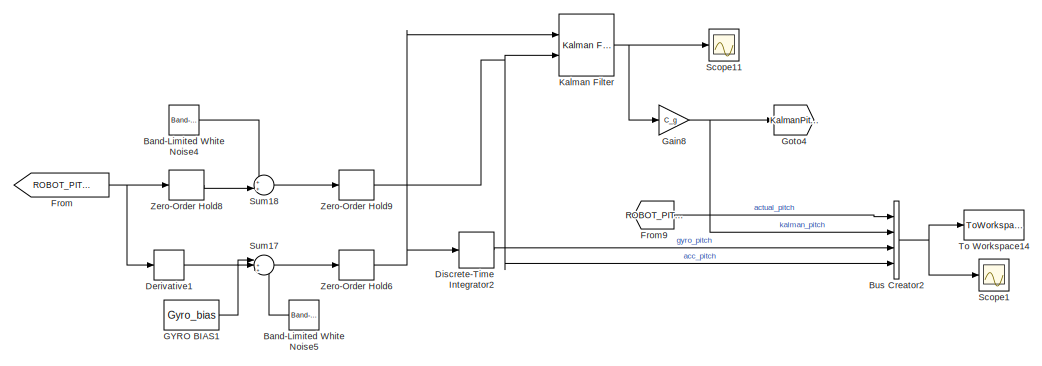
[diagram: root canvas - part 1/6, top right region]
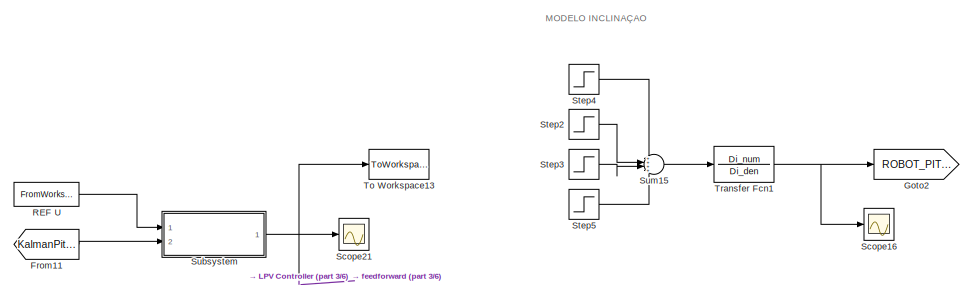
[diagram: root canvas - part 2/6, top center region]
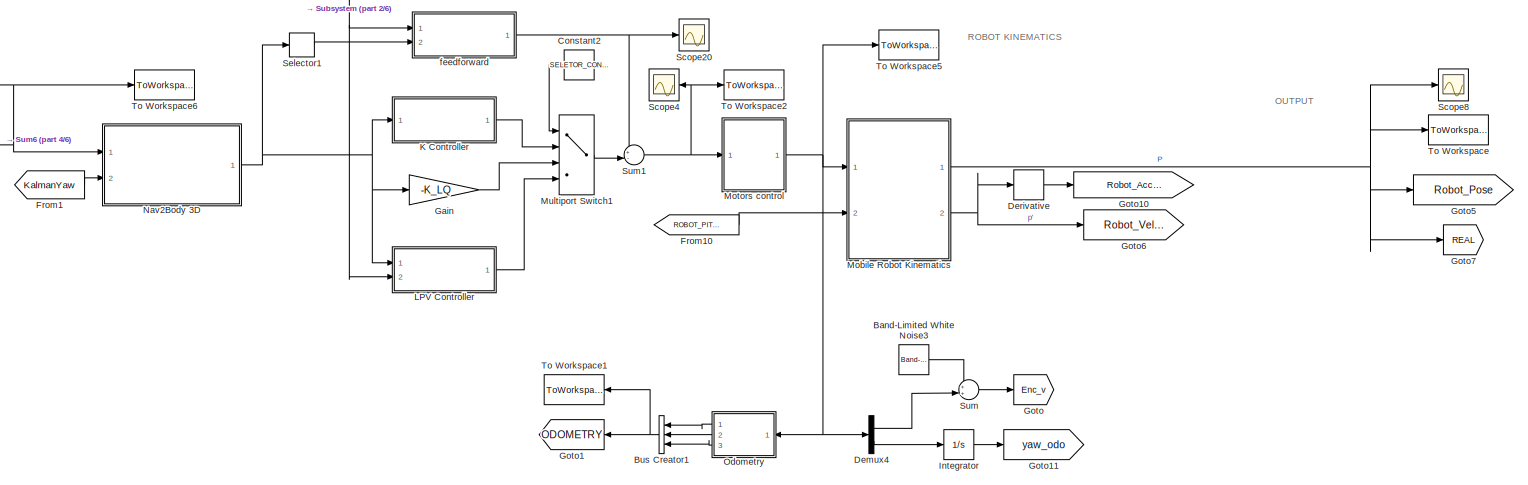
[diagram: root canvas - part 3/6, central region]
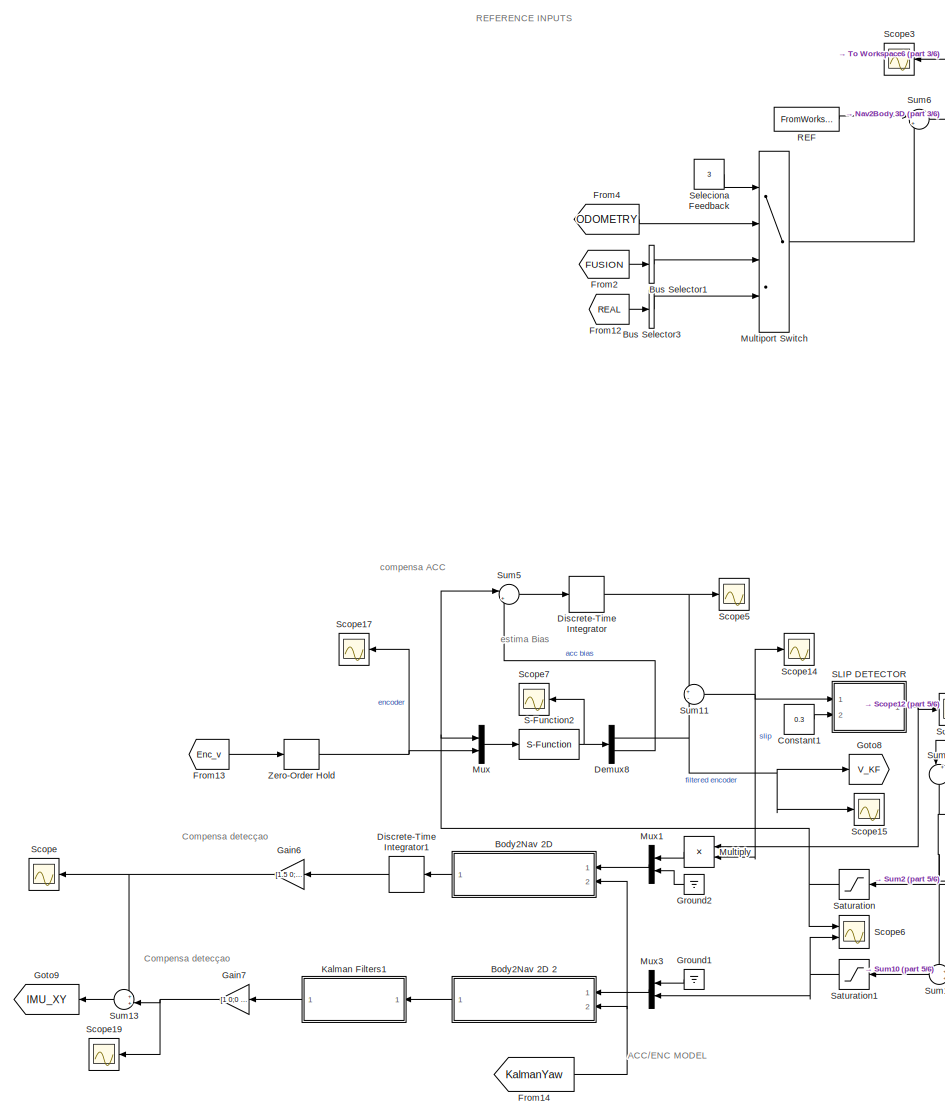
[diagram: root canvas - part 4/6, middle left region]
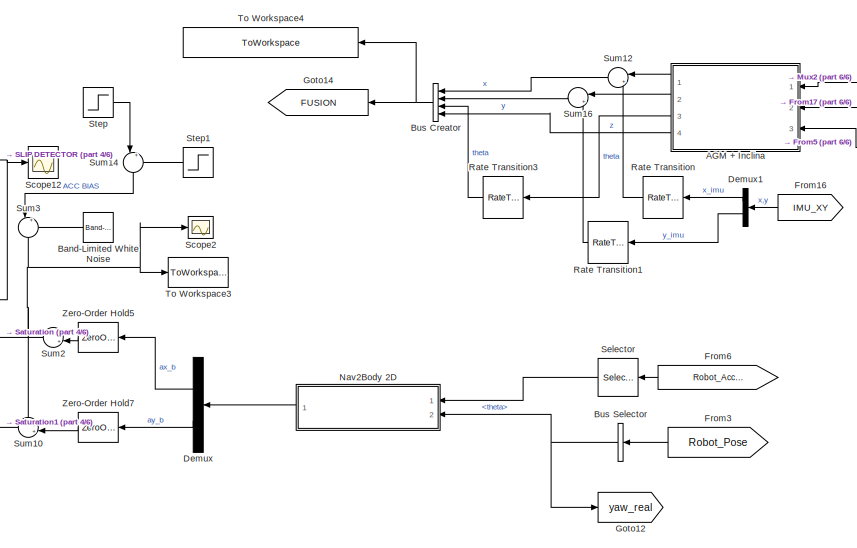
[diagram: root canvas - part 5/6, bottom center region]
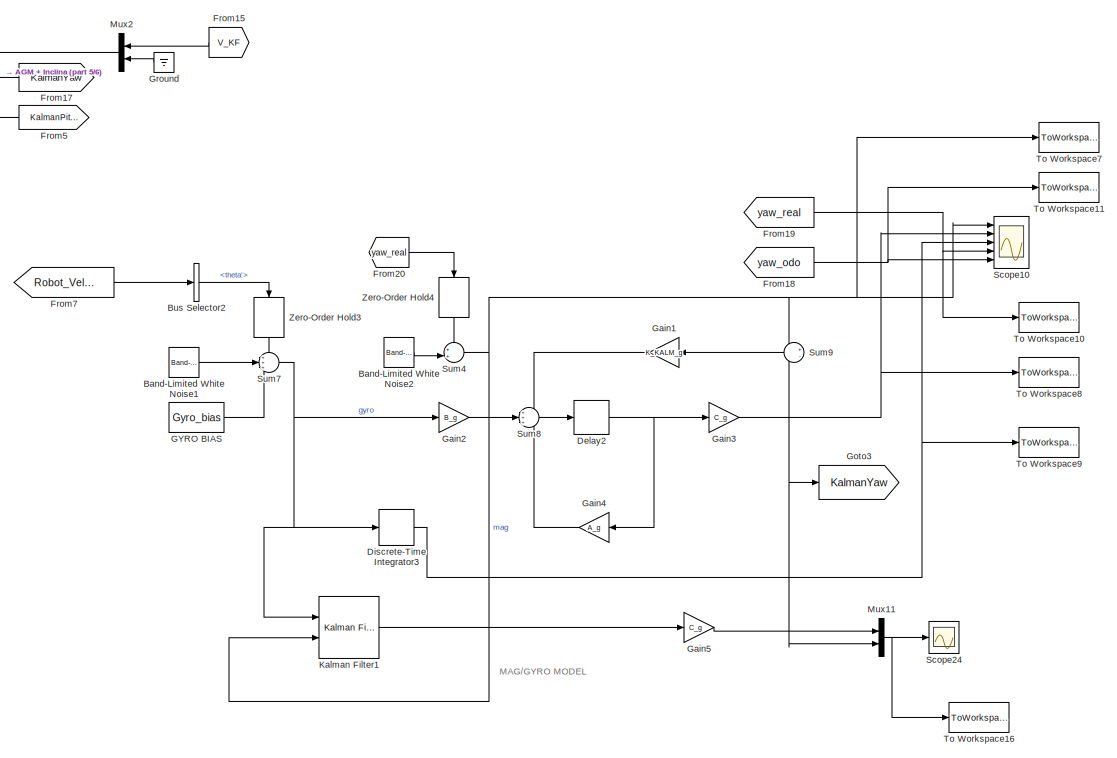
[diagram: root canvas - part 6/6, bottom right region]
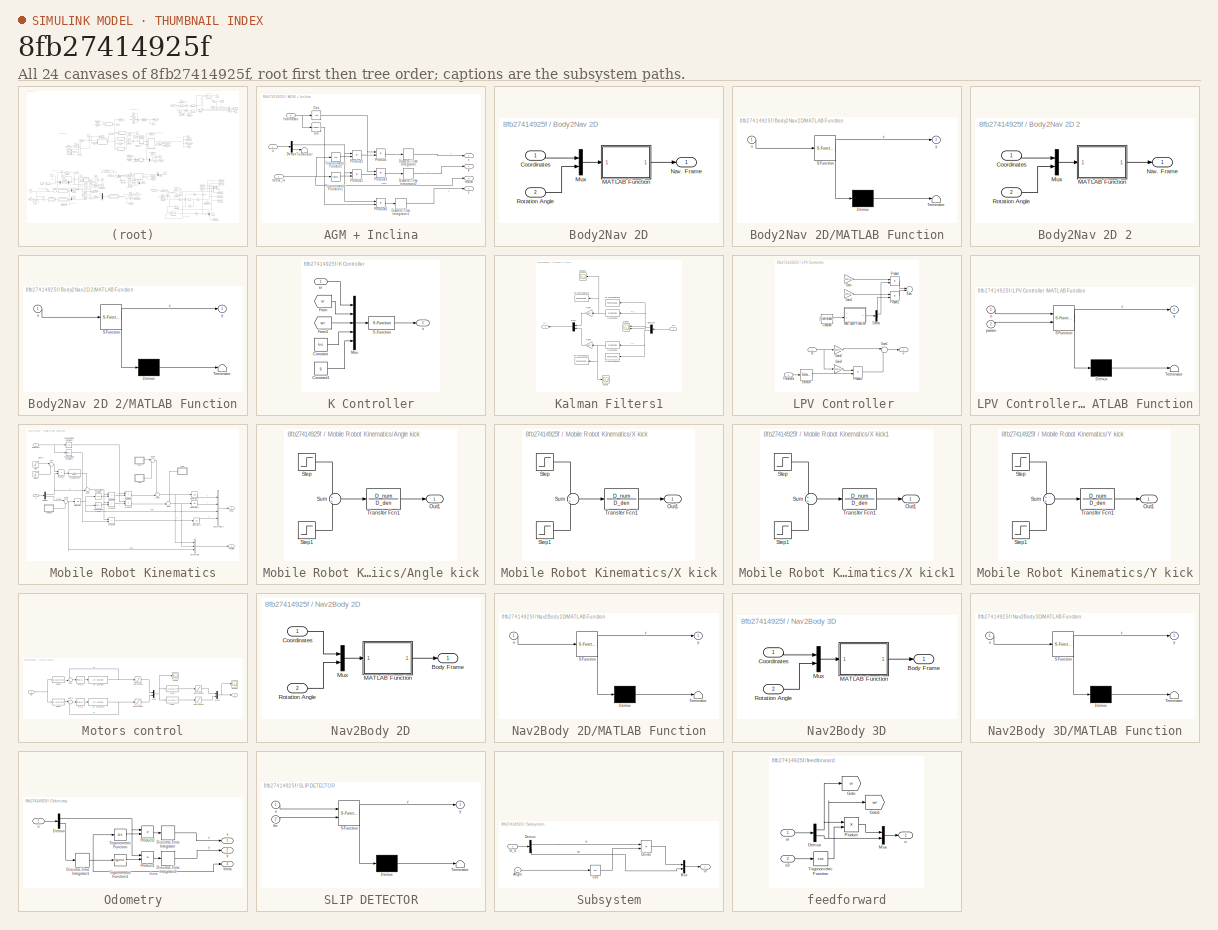
[diagram: thumbnail index - all 24 canvases of the model, root first then tree order]
MODEL slx_8fb27414925f
KIND model
CONFIG AbsTol = auto
CONFIG EnableMultiTasking = off
CONFIG FixedStep = Ts_compute
CONFIG MaxStep = auto
CONFIG MinStep = auto
CONFIG RelTol = 1e-3
CONFIG SampleTimeConstraint = Unconstrained
CONFIG Solver = ode45
CONFIG SolverName = ode45
CONFIG StartTime = 0.0
CONFIG StopTime = Tsim
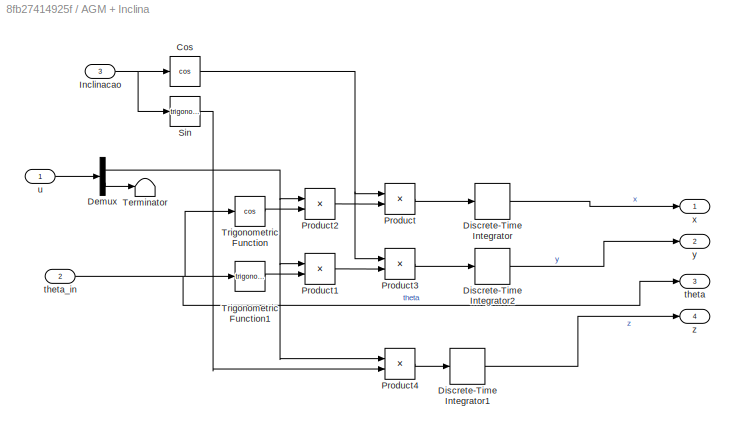
BLOCK [SubSystem] AGM + Inclina
  Ports = [3, 4]
  RequestExecContextInheritance = off
BLOCK [Trigonometry] AGM + Inclina/Cos
  Operator = cos
  Ports = [1, 1]
BLOCK [Demux] AGM + Inclina/Demux
  DisplayOption = bar
  Outputs = 2
  Ports = [1, 2]
BLOCK [DiscreteIntegrator] AGM + Inclina/Discrete-Time Integrator
  ICPrevOutput = DiscIntNeverNeededParam
  ICPrevScaledInput = DiscIntNeverNeededParam
  InitialConditionSetting = Auto
  Ports = [1, 1]
  SampleTime = Ts
BLOCK [DiscreteIntegrator] AGM + Inclina/Discrete-Time Integrator1
  ICPrevOutput = DiscIntNeverNeededParam
  ICPrevScaledInput = DiscIntNeverNeededParam
  InitialConditionSetting = Auto
  Ports = [1, 1]
  SampleTime = Ts
BLOCK [DiscreteIntegrator] AGM + Inclina/Discrete-Time Integrator2
  ICPrevOutput = DiscIntNeverNeededParam
  ICPrevScaledInput = DiscIntNeverNeededParam
  InitialConditionSetting = Auto
  Ports = [1, 1]
  SampleTime = Ts
BLOCK [Inport] AGM + Inclina/Inclinacao 
  IconDisplay = Port number
  Port = 3
BLOCK [Product] AGM + Inclina/Product
  InputSameDT = off
  OutDataTypeStr = Inherit: Inherit via internal rule
  Ports = [2, 1]
  RndMeth = Floor
  SaturateOnIntegerOverflow = off
BLOCK [Product] AGM + Inclina/Product1
  InputSameDT = off
  OutDataTypeStr = Inherit: Inherit via internal rule
  Ports = [2, 1]
  RndMeth = Floor
  SaturateOnIntegerOverflow = off
BLOCK [Product] AGM + Inclina/Product2
  InputSameDT = off
  OutDataTypeStr = Inherit: Inherit via internal rule
  Ports = [2, 1]
  RndMeth = Floor
  SaturateOnIntegerOverflow = off
BLOCK [Product] AGM + Inclina/Product3
  InputSameDT = off
  OutDataTypeStr = Inherit: Inherit via internal rule
  Ports = [2, 1]
  RndMeth = Floor
  SaturateOnIntegerOverflow = off
BLOCK [Product] AGM + Inclina/Product4
  InputSameDT = off
  OutDataTypeStr = Inherit: Inherit via internal rule
  Ports = [2, 1]
  RndMeth = Floor
  SaturateOnIntegerOverflow = off
BLOCK [Trigonometry] AGM + Inclina/Sin
  Ports = [1, 1]
BLOCK [Terminator] AGM + Inclina/Terminator
BLOCK [Trigonometry] AGM + Inclina/Trigonometric Function
  Operator = cos
  Ports = [1, 1]
BLOCK [Trigonometry] AGM + Inclina/Trigonometric Function1
  Ports = [1, 1]
BLOCK [Outport] AGM + Inclina/theta
  IconDisplay = Port number
  Port = 3
BLOCK [Inport] AGM + Inclina/theta_in
  IconDisplay = Port number
  Port = 2
BLOCK [Inport] AGM + Inclina/u
  IconDisplay = Port number
BLOCK [Outport] AGM + Inclina/x
  IconDisplay = Port number
BLOCK [Outport] AGM + Inclina/y
  IconDisplay = Port number
  Port = 2
BLOCK [Outport] AGM + Inclina/z
  IconDisplay = Port number
  Port = 4
BLOCK [Reference] Band-Limited White Noise  REF=simulink/Sources/Band-Limited
White Noise
  Ports = [0, 1]
  SourceBlock = simulink/Sources/Band-Limited\nWhite Noise
  SourceProductBaseCode = SL
  SourceProductName = Simulink
  SourceType = Band-Limited White Noise.
BLOCK [Reference] Band-Limited White Noise1  REF=simulink/Sources/Band-Limited
White Noise
  Ports = [0, 1]
  SourceBlock = simulink/Sources/Band-Limited\nWhite Noise
  SourceProductBaseCode = SL
  SourceProductName = Simulink
  SourceType = Band-Limited White Noise.
BLOCK [Reference] Band-Limited White Noise2  REF=simulink/Sources/Band-Limited
White Noise
  Ports = [0, 1]
  SourceBlock = simulink/Sources/Band-Limited\nWhite Noise
  SourceProductBaseCode = SL
  SourceProductName = Simulink
  SourceType = Band-Limited White Noise.
BLOCK [Reference] Band-Limited White Noise3  REF=simulink/Sources/Band-Limited
White Noise
  Ports = [0, 1]
  SourceBlock = simulink/Sources/Band-Limited\nWhite Noise
  SourceProductBaseCode = SL
  SourceProductName = Simulink
  SourceType = Band-Limited White Noise.
BLOCK [Reference] Band-Limited White Noise4  REF=simulink/Sources/Band-Limited
White Noise
  Ports = [0, 1]
  SourceBlock = simulink/Sources/Band-Limited\nWhite Noise
  SourceProductBaseCode = SL
  SourceProductName = Simulink
  SourceType = Band-Limited White Noise.
BLOCK [Reference] Band-Limited White Noise5  REF=simulink/Sources/Band-Limited
White Noise
  Ports = [0, 1]
  SourceBlock = simulink/Sources/Band-Limited\nWhite Noise
  SourceProductBaseCode = SL
  SourceProductName = Simulink
  SourceType = Band-Limited White Noise.
BLOCK [SubSystem] Body2Nav 2D
  Ports = [2, 1]
  RequestExecContextInheritance = off
BLOCK [SubSystem] Body2Nav 2D 2
  Ports = [2, 1]
  RequestExecContextInheritance = off
BLOCK [Inport] Body2Nav 2D 2/Coordinates
  IconDisplay = Port number
BLOCK [SubSystem] Body2Nav 2D 2/MATLAB Function
  ErrorFcn = Stateflow.Translate.translate
  PermitHierarchicalResolution = ExplicitOnly
  Ports = [1, 1]
  RequestExecContextInheritance = off
  SFBlockType = MATLAB Function
  TreatAsAtomicUnit = on
BLOCK [Demux] Body2Nav 2D 2/MATLAB Function/ Demux 
  Outputs = 1
  Ports = [1, 1]
BLOCK [S-Function] Body2Nav 2D 2/MATLAB Function/ SFunction 
  EnableBusSupport = on
  FunctionName = sf_sfun
  PortCounts = [1 2]
  Ports = [1, 2]
  SFcnIsStateOwnerBlock = off
  SFunctionDeploymentMode = off
  Tag = Stateflow S-Function Robot_Sim 6
BLOCK [Terminator] Body2Nav 2D 2/MATLAB Function/ Terminator 
BLOCK [Inport] Body2Nav 2D 2/MATLAB Function/u
  IconDisplay = Port number
BLOCK [Outport] Body2Nav 2D 2/MATLAB Function/y
  IconDisplay = Port number
BLOCK [Mux] Body2Nav 2D 2/Mux
  DisplayOption = bar
  Inputs = 2
  Ports = [2, 1]
BLOCK [Outport] Body2Nav 2D 2/Nav. Frame
  IconDisplay = Port number
BLOCK [Inport] Body2Nav 2D 2/Rotation Angle
  IconDisplay = Port number
  Port = 2
BLOCK [Inport] Body2Nav 2D/Coordinates
  IconDisplay = Port number
BLOCK [SubSystem] Body2Nav 2D/MATLAB Function
  ErrorFcn = Stateflow.Translate.translate
  PermitHierarchicalResolution = ExplicitOnly
  Ports = [1, 1]
  RequestExecContextInheritance = off
  SFBlockType = MATLAB Function
  TreatAsAtomicUnit = on
BLOCK [Demux] Body2Nav 2D/MATLAB Function/ Demux 
  Outputs = 1
  Ports = [1, 1]
BLOCK [S-Function] Body2Nav 2D/MATLAB Function/ SFunction 
  EnableBusSupport = on
  FunctionName = sf_sfun
  PortCounts = [1 2]
  Ports = [1, 2]
  SFcnIsStateOwnerBlock = off
  SFunctionDeploymentMode = off
  Tag = Stateflow S-Function Robot_Sim 4
BLOCK [Terminator] Body2Nav 2D/MATLAB Function/ Terminator 
BLOCK [Inport] Body2Nav 2D/MATLAB Function/u
  IconDisplay = Port number
BLOCK [Outport] Body2Nav 2D/MATLAB Function/y
  IconDisplay = Port number
BLOCK [Mux] Body2Nav 2D/Mux
  DisplayOption = bar
  Inputs = 2
  Ports = [2, 1]
BLOCK [Outport] Body2Nav 2D/Nav. Frame
  IconDisplay = Port number
BLOCK [Inport] Body2Nav 2D/Rotation Angle
  IconDisplay = Port number
  Port = 2
BLOCK [BusCreator] Bus Creator
  DisplayOption = bar
  InheritFromInputs = on
  Inputs = 4
  Ports = [4, 1]
BLOCK [BusCreator] Bus Creator1
  DisplayOption = bar
  InheritFromInputs = on
  Inputs = 3
  Ports = [3, 1]
BLOCK [BusCreator] Bus Creator2
  DisplayOption = bar
  InheritFromInputs = on
  Inputs = 4
  Ports = [4, 1]
BLOCK [BusSelector] Bus Selector
  OutputAsBus = off
  OutputSignals = theta
  Ports = [1, 1]
BLOCK [BusSelector] Bus Selector1
  OutputAsBus = on
  OutputSignals = x,y,theta
  Ports = [1, 1]
BLOCK [BusSelector] Bus Selector2
  OutputAsBus = off
  OutputSignals = theta'
  Ports = [1, 1]
BLOCK [BusSelector] Bus Selector3
  OutputAsBus = on
  OutputSignals = x,y,theta
  Ports = [1, 1]
BLOCK [Constant] Constant1
  Value = 0.3
BLOCK [Constant] Constant2
  Value = SELETOR_CONTROLADOR
BLOCK [Delay] Delay2
  DelayLength = 1
  InputPortMap = u0
  Ports = [1, 1]
BLOCK [Demux] Demux
  DisplayOption = bar
  Outputs = 2
  Ports = [1, 2]
BLOCK [Demux] Demux1
  DisplayOption = bar
  Outputs = 2
  Ports = [1, 2]
BLOCK [Demux] Demux4
  DisplayOption = bar
  Outputs = 2
  Ports = [1, 2]
BLOCK [Demux] Demux8
  DisplayOption = bar
  Outputs = 2
  Ports = [1, 2]
BLOCK [Derivative] Derivative
  CoefficientInTFapproximation = 1
BLOCK [Derivative] Derivative1
BLOCK [DiscreteIntegrator] Discrete-Time Integrator
  ICPrevOutput = DiscIntNeverNeededParam
  ICPrevScaledInput = DiscIntNeverNeededParam
  InitialConditionSetting = Auto
  IntegratorMethod = Integration: Backward Euler
  Ports = [1, 1]
  SampleTime = Ts_sensor
BLOCK [DiscreteIntegrator] Discrete-Time Integrator1
  ICPrevOutput = DiscIntNeverNeededParam
  ICPrevScaledInput = DiscIntNeverNeededParam
  InitialConditionSetting = Auto
  Ports = [1, 1]
  SampleTime = Ts_sensor
BLOCK [DiscreteIntegrator] Discrete-Time Integrator2
  ICPrevOutput = DiscIntNeverNeededParam
  ICPrevScaledInput = DiscIntNeverNeededParam
  InitialConditionSetting = Auto
  Ports = [1, 1]
  SampleTime = -1
BLOCK [DiscreteIntegrator] Discrete-Time Integrator3
  ICPrevOutput = DiscIntNeverNeededParam
  ICPrevScaledInput = DiscIntNeverNeededParam
  InitialConditionSetting = Auto
  Ports = [1, 1]
  SampleTime = -1
BLOCK [From] From
  GotoTag = ROBOT_PITCH
BLOCK [From] From1
  GotoTag = KalmanYaw
BLOCK [From] From10
  GotoTag = ROBOT_PITCH
BLOCK [From] From11
  GotoTag = KalmanPitch
BLOCK [From] From12
  GotoTag = REAL
BLOCK [From] From13
  GotoTag = Enc_v
BLOCK [From] From14
  GotoTag = KalmanYaw
BLOCK [From] From15
  GotoTag = V_KF
BLOCK [From] From16
  GotoTag = IMU_XY
BLOCK [From] From17
  GotoTag = KalmanYaw
BLOCK [From] From18
  GotoTag = yaw_odo
BLOCK [From] From19
  GotoTag = yaw_real
BLOCK [From] From2
  GotoTag = FUSION
BLOCK [From] From20
  GotoTag = yaw_real
BLOCK [From] From3
  GotoTag = Robot_Pose
BLOCK [From] From4
  GotoTag = ODOMETRY
BLOCK [From] From5
  GotoTag = KalmanPitch
BLOCK [From] From6
  GotoTag = Robot_Accelerations
BLOCK [From] From7
  GotoTag = Robot_Velocities
BLOCK [From] From9
  GotoTag = ROBOT_PITCH
BLOCK [Constant] GYRO BIAS
  Value = Gyro_bias
BLOCK [Constant] GYRO BIAS1
  Value = Gyro_bias
BLOCK [Gain] Gain
  Gain = -K_LQ
  Multiplication = Matrix(K*u)
  OutDataTypeStr = Inherit: Inherit via internal rule
  ParamDataTypeStr = Inherit: Inherit via internal rule
  SaturateOnIntegerOverflow = off
BLOCK [Gain] Gain1
  Gain = K_KALM_g
  Multiplication = Matrix(K*u)
  OutDataTypeStr = Inherit: Inherit via internal rule
  ParamDataTypeStr = Inherit: Inherit via internal rule
  SaturateOnIntegerOverflow = off
BLOCK [Gain] Gain2
  Gain = B_g
  Multiplication = Matrix(K*u)
  OutDataTypeStr = Inherit: Inherit via internal rule
  ParamDataTypeStr = Inherit: Inherit via internal rule
  SaturateOnIntegerOverflow = off
BLOCK [Gain] Gain3
  Gain = C_g
  Multiplication = Matrix(K*u)
  OutDataTypeStr = Inherit: Inherit via internal rule
  ParamDataTypeStr = Inherit: Inherit via internal rule
  SaturateOnIntegerOverflow = off
BLOCK [Gain] Gain4
  Gain = A_g
  Multiplication = Matrix(K*u)
  OutDataTypeStr = Inherit: Inherit via internal rule
  ParamDataTypeStr = Inherit: Inherit via internal rule
  SaturateOnIntegerOverflow = off
BLOCK [Gain] Gain5
  Gain = C_g
  Multiplication = Matrix(K*u)
  OutDataTypeStr = Inherit: Inherit via internal rule
  ParamDataTypeStr = Inherit: Inherit via internal rule
  SaturateOnIntegerOverflow = off
BLOCK [Gain] Gain6
  Gain = [1.5 0;0 1.5]
  Multiplication = Matrix(K*u)
  OutDataTypeStr = Inherit: Inherit via internal rule
  ParamDataTypeStr = Inherit: Inherit via internal rule
  SaturateOnIntegerOverflow = off
BLOCK [Gain] Gain7
  Gain = [1 0;0 1]
  Multiplication = Matrix(K*u)
  OutDataTypeStr = Inherit: Inherit via internal rule
  ParamDataTypeStr = Inherit: Inherit via internal rule
  SaturateOnIntegerOverflow = off
BLOCK [Gain] Gain8
  Gain = C_g
  Multiplication = Matrix(K*u)
  OutDataTypeStr = Inherit: Inherit via internal rule
  ParamDataTypeStr = Inherit: Inherit via internal rule
  SaturateOnIntegerOverflow = off
BLOCK [Goto] Goto
  GotoTag = Enc_v
BLOCK [Goto] Goto1
  GotoTag = ODOMETRY
BLOCK [Goto] Goto10
  GotoTag = Robot_Accelerations
BLOCK [Goto] Goto11
  GotoTag = yaw_odo
BLOCK [Goto] Goto12
  GotoTag = yaw_real
BLOCK [Goto] Goto14
  GotoTag = FUSION
BLOCK [Goto] Goto2
  GotoTag = ROBOT_PITCH
BLOCK [Goto] Goto3
  GotoTag = KalmanYaw
BLOCK [Goto] Goto4
  GotoTag = KalmanPitch
BLOCK [Goto] Goto5
  GotoTag = Robot_Pose
BLOCK [Goto] Goto6
  GotoTag = Robot_Velocities
BLOCK [Goto] Goto7
  GotoTag = REAL
BLOCK [Goto] Goto8
  GotoTag = V_KF
BLOCK [Goto] Goto9
  GotoTag = IMU_XY
BLOCK [Ground] Ground
BLOCK [Ground] Ground1
BLOCK [Ground] Ground2
BLOCK [Integrator] Integrator
  Ports = [1, 1]
BLOCK [SubSystem] K Controller
  Ports = [1, 1]
  RequestExecContextInheritance = off
BLOCK [Constant] K Controller/Constant
  Value = ksi
BLOCK [Constant] K Controller/Constant1
  Value = g
BLOCK [From] K Controller/From
  GotoTag = vr
  TagVisibility = global
BLOCK [From] K Controller/From1
  GotoTag = wr
  TagVisibility = global
BLOCK [Mux] K Controller/Mux
  DisplayOption = bar
  Inputs = 5
  Ports = [5, 1]
BLOCK [S-Function] K Controller/S-Function
  EnableBusSupport = off
  FunctionName = ControllerK
  Parameters = Ts
  Ports = [1, 1]
  SFcnIsStateOwnerBlock = off
  SFunctionDeploymentMode = off
BLOCK [Inport] K Controller/er
  IconDisplay = Port number
BLOCK [Outport] K Controller/v
  IconDisplay = Port number
BLOCK [Reference] Kalman Filter  REF=ctrlSharedLib/Kalman Filter
  Ports = [2, 1]
  SourceBlock = ctrlSharedLib/Kalman Filter
  SourceProductBaseCode = CT
  SourceProductName = Control System Toolbox
  SourceType = ctrlKalmanFilter
BLOCK [Reference] Kalman Filter1  REF=ctrlSharedLib/Kalman Filter
  Ports = [2, 1]
  SourceBlock = ctrlSharedLib/Kalman Filter
  SourceProductBaseCode = CT
  SourceProductName = Control System Toolbox
  SourceType = ctrlKalmanFilter
BLOCK [SubSystem] Kalman Filters1
  Ports = [1, 1]
  RequestExecContextInheritance = off
BLOCK [Inport] Kalman Filters1/Acc
  IconDisplay = Port number
BLOCK [Demux] Kalman Filters1/Demux8
  DisplayOption = bar
  Outputs = 2
  Ports = [1, 2]
BLOCK [Gain] Kalman Filters1/Gain6
  Gain = [1 0 0]
  Multiplication = Matrix(K*u)
  OutDataTypeStr = Inherit: Inherit via internal rule
  ParamDataTypeStr = Inherit: Inherit via internal rule
  SaturateOnIntegerOverflow = off
BLOCK [Gain] Kalman Filters1/Gain7
  Gain = [1 0 0]
  Multiplication = Matrix(K*u)
  OutDataTypeStr = Inherit: Inherit via internal rule
  ParamDataTypeStr = Inherit: Inherit via internal rule
  SaturateOnIntegerOverflow = off
BLOCK [Mux] Kalman Filters1/Mux1
  DisplayOption = bar
  Inputs = 2
  Ports = [2, 1]
BLOCK [S-Function] Kalman Filters1/S-Function1
  EnableBusSupport = off
  FunctionName = modKalman2
  Parameters = Ts_sensor,A_y,C_y,Rw_y,Rv_y,discriminator,buffer_size
  Ports = [1, 1]
  SFcnIsStateOwnerBlock = off
  SFunctionDeploymentMode = off
BLOCK [S-Function] Kalman Filters1/S-Function2
  EnableBusSupport = off
  FunctionName = modKalman
  Parameters = Ts_sensor,A_y,C_y,Rw_y,Rv_y,discriminator,buffer_size
  Ports = [1, 1]
  SFcnIsStateOwnerBlock = off
  SFunctionDeploymentMode = off
BLOCK [Scope] Kalman Filters1/Scope
  Floating = off
  NumInputPorts = 1
  Ports = [1]
  ScopeSpecificationString = Simulink.scopes.TimeScopeBlockCfg('CurrentConfiguration', extmgr.ConfigurationSet(extmgr.Configuration('Core','General UI',true,'FigureColor',[0.156862745098039 0.156862745098039 0.156862745098039]),extmgr.Configuration('Core','Source UI',true),extmgr.Configuration('Sources','WiredSimulink',true,'DataLoggingVariableName','ScopeData1','DataLoggingSaveFormat','StructureWithTime','DataLoggingDecimati...<+2842ch>
BLOCK [Scope] Kalman Filters1/Scope1
  Floating = off
  NumInputPorts = 2
  Ports = [2]
  ScopeSpecificationString = Simulink.scopes.TimeScopeBlockCfg('CurrentConfiguration', extmgr.ConfigurationSet(extmgr.Configuration('Core','General UI',true),extmgr.Configuration('Core','Source UI',true),extmgr.Configuration('Sources','WiredSimulink',true,'DataLoggingVariableName','ScopeData5'),extmgr.Configuration('Visuals','Time Domain',true,'SerializedDisplays',{struct('MinYLimReal','-48.99996','MaxYLimReal','48.99997','YL...<+1491ch>
BLOCK [Scope] Kalman Filters1/Scope12
  Floating = off
  NumInputPorts = 1
  Ports = [1]
  ScopeSpecificationString = Simulink.scopes.TimeScopeBlockCfg('CurrentConfiguration', extmgr.ConfigurationSet(extmgr.Configuration('Core','General UI',true,'FigureColor',[0.156862745098039 0.156862745098039 0.156862745098039]),extmgr.Configuration('Core','Source UI',true),extmgr.Configuration('Sources','WiredSimulink',true,'DataLoggingVariableName','ScopeData2','DataLoggingSaveFormat','StructureWithTime','DataLoggingDecimati...<+2840ch>
BLOCK [ToWorkspace] Kalman Filters1/To Workspace12
  FixptAsFi = on
  MaxDataPoints = inf
  Ports = [1]
  SampleTime = -1
  Save2DSignal = 3-D array (concatenate along third dimension)
  SaveFormat = Timeseries
  VariableName = acc_data_x
BLOCK [ToWorkspace] Kalman Filters1/To Workspace13
  FixptAsFi = on
  MaxDataPoints = inf
  Ports = [1]
  SampleTime = -1
  Save2DSignal = 3-D array (concatenate along third dimension)
  SaveFormat = Timeseries
  VariableName = acc_kalman_x
BLOCK [ToWorkspace] Kalman Filters1/To Workspace14
  FixptAsFi = on
  MaxDataPoints = inf
  Ports = [1]
  SampleTime = -1
  Save2DSignal = 3-D array (concatenate along third dimension)
  SaveFormat = Timeseries
  VariableName = acc_data_y
BLOCK [ToWorkspace] Kalman Filters1/To Workspace15
  FixptAsFi = on
  MaxDataPoints = inf
  Ports = [1]
  SampleTime = -1
  Save2DSignal = 3-D array (concatenate along third dimension)
  SaveFormat = Timeseries
  VariableName = acc_kalman_y
BLOCK [Outport] Kalman Filters1/X,Y
  IconDisplay = Port number
BLOCK [SubSystem] LPV Controller 
  Ports = [2, 1]
  RequestExecContextInheritance = off
BLOCK [Constant] LPV Controller /Constant
  Commented = on
  Value = [Controlador_LPV.Vmax Controlador_LPV.Vmin]
BLOCK [Demux] LPV Controller /Demux
  Commented = on
  DisplayOption = bar
  Outputs = 2
  Ports = [1, 2]
BLOCK [Gain] LPV Controller /Gain
  Commented = on
  Gain = -Controlador_LPV.K1
  Multiplication = Matrix(K*u)
  OutDataTypeStr = Inherit: Inherit via internal rule
  ParamDataTypeStr = Inherit: Inherit via internal rule
  SaturateOnIntegerOverflow = off
BLOCK [Gain] LPV Controller /Gain1
  Commented = on
  Gain = -Controlador_LPV.K2
  Multiplication = Matrix(K*u)
  OutDataTypeStr = Inherit: Inherit via internal rule
  ParamDataTypeStr = Inherit: Inherit via internal rule
  SaturateOnIntegerOverflow = off
BLOCK [Gain] LPV Controller /Gain2
  Gain = -Controlador_LPV.K0
  Multiplication = Matrix(K*u)
  OutDataTypeStr = Inherit: Inherit via internal rule
  ParamDataTypeStr = Inherit: Inherit via internal rule
  SaturateOnIntegerOverflow = off
BLOCK [Gain] LPV Controller /Gain3
  Gain = -Controlador_LPV.K1
  Multiplication = Matrix(K*u)
  OutDataTypeStr = Inherit: Inherit via internal rule
  ParamDataTypeStr = Inherit: Inherit via internal rule
  SaturateOnIntegerOverflow = off
BLOCK [SubSystem] LPV Controller /MATLAB Function
  Commented = on
  ErrorFcn = Stateflow.Translate.translate
  PermitHierarchicalResolution = ExplicitOnly
  Ports = [2, 1]
  RequestExecContextInheritance = off
  SFBlockType = MATLAB Function
  TreatAsAtomicUnit = on
BLOCK [Demux] LPV Controller /MATLAB Function/ Demux 
  Outputs = 1
  Ports = [1, 1]
BLOCK [S-Function] LPV Controller /MATLAB Function/ SFunction 
  EnableBusSupport = on
  FunctionName = sf_sfun
  PortCounts = [2 2]
  Ports = [2, 2]
  SFcnIsStateOwnerBlock = off
  SFunctionDeploymentMode = off
  Tag = Stateflow S-Function Robot_Sim 5
BLOCK [Terminator] LPV Controller /MATLAB Function/ Terminator 
BLOCK [Inport] LPV Controller /MATLAB Function/param
  IconDisplay = Port number
  Port = 2
BLOCK [Inport] LPV Controller /MATLAB Function/u
  IconDisplay = Port number
BLOCK [Outport] LPV Controller /MATLAB Function/y
  IconDisplay = Port number
BLOCK [Inport] LPV Controller /Parameter
  IconDisplay = Port number
  Port = 2
BLOCK [Product] LPV Controller /Product
  Commented = on
  InputSameDT = off
  OutDataTypeStr = Inherit: Inherit via internal rule
  Ports = [2, 1]
  RndMeth = Floor
  SaturateOnIntegerOverflow = off
BLOCK [Product] LPV Controller /Product1
  Commented = on
  InputSameDT = off
  OutDataTypeStr = Inherit: Inherit via internal rule
  Ports = [2, 1]
  RndMeth = Floor
  SaturateOnIntegerOverflow = off
BLOCK [Product] LPV Controller /Product2
  InputSameDT = off
  OutDataTypeStr = Inherit: Inherit via internal rule
  Ports = [2, 1]
  RndMeth = Floor
  SaturateOnIntegerOverflow = off
BLOCK [Selector] LPV Controller /Selector
  IndexOptions = Index vector (dialog)
  Indices = 1
  InputPortWidth = 2
  OutputSizes = 1
  Ports = [1, 1]
BLOCK [Sum] LPV Controller /Sum
  Commented = on
  IconShape = round
  InputSameDT = off
  OutDataTypeStr = Inherit: Inherit via internal rule
  Ports = [2, 1]
  SaturateOnIntegerOverflow = off
BLOCK [Sum] LPV Controller /Sum1
  IconShape = round
  InputSameDT = off
  Inputs = |++
  OutDataTypeStr = Inherit: Inherit via internal rule
  Ports = [2, 1]
  SaturateOnIntegerOverflow = off
BLOCK [Inport] LPV Controller /er
  IconDisplay = Port number
BLOCK [Outport] LPV Controller /v
  IconDisplay = Port number
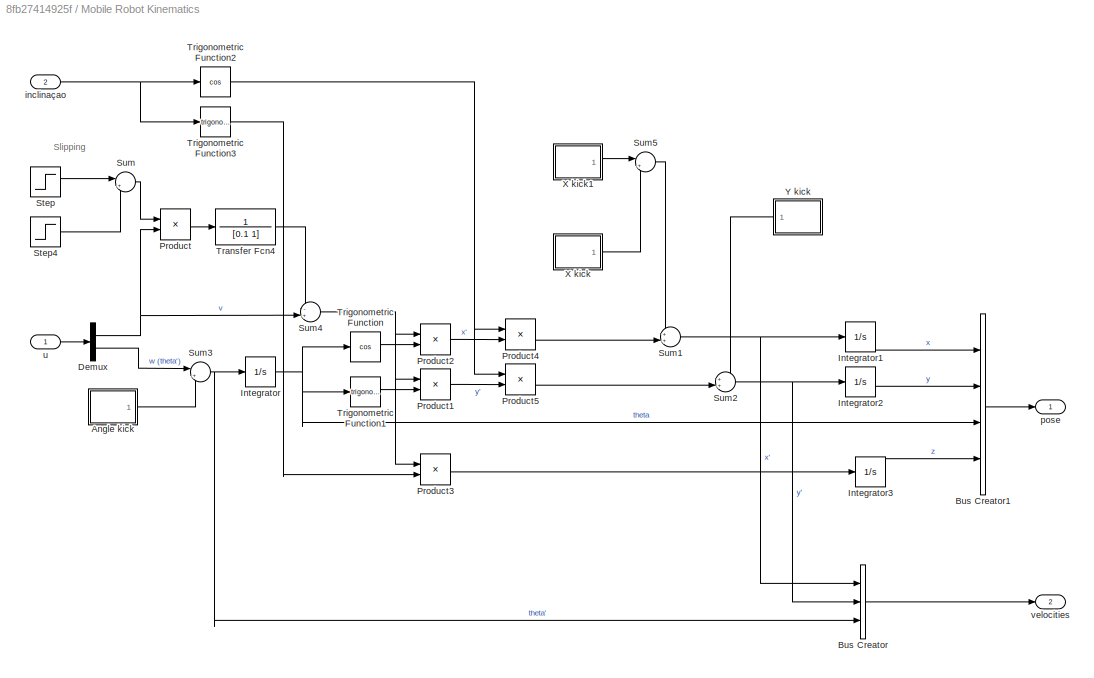
BLOCK [SubSystem] Mobile Robot Kinematics
  Ports = [2, 2]
  RequestExecContextInheritance = off
BLOCK [SubSystem] Mobile Robot Kinematics/Angle kick
  Commented = on
  Ports = [0, 1]
  RequestExecContextInheritance = off
BLOCK [Outport] Mobile Robot Kinematics/Angle kick/Out1
  IconDisplay = Port number
BLOCK [Step] Mobile Robot Kinematics/Angle kick/Step
  After = 2*A
  SampleTime = 0
  Time = T
BLOCK [Step] Mobile Robot Kinematics/Angle kick/Step1
  After = -2*A
  SampleTime = 0
  Time = T+0.5
BLOCK [Sum] Mobile Robot Kinematics/Angle kick/Sum
  IconShape = round
  InputSameDT = off
  OutDataTypeStr = Inherit: Inherit via internal rule
  Ports = [2, 1]
  SaturateOnIntegerOverflow = off
BLOCK [TransferFcn] Mobile Robot Kinematics/Angle kick/Transfer Fcn1
  Denominator = D_den
  Numerator = D_num
BLOCK [BusCreator] Mobile Robot Kinematics/Bus Creator
  DisplayOption = bar
  InheritFromInputs = on
  Inputs = 3
  Ports = [3, 1]
BLOCK [BusCreator] Mobile Robot Kinematics/Bus Creator1
  DisplayOption = bar
  InheritFromInputs = on
  Inputs = 4
  Ports = [4, 1]
BLOCK [Demux] Mobile Robot Kinematics/Demux
  DisplayOption = bar
  Outputs = 2
  Ports = [1, 2]
BLOCK [Integrator] Mobile Robot Kinematics/Integrator
  Ports = [1, 1]
BLOCK [Integrator] Mobile Robot Kinematics/Integrator1
  Ports = [1, 1]
BLOCK [Integrator] Mobile Robot Kinematics/Integrator2
  Ports = [1, 1]
BLOCK [Integrator] Mobile Robot Kinematics/Integrator3
  Ports = [1, 1]
BLOCK [Product] Mobile Robot Kinematics/Product
  Commented = on
  InputSameDT = off
  OutDataTypeStr = Inherit: Inherit via internal rule
  Ports = [2, 1]
  RndMeth = Floor
  SaturateOnIntegerOverflow = off
BLOCK [Product] Mobile Robot Kinematics/Product1
  InputSameDT = off
  OutDataTypeStr = Inherit: Inherit via internal rule
  Ports = [2, 1]
  RndMeth = Floor
  SaturateOnIntegerOverflow = off
BLOCK [Product] Mobile Robot Kinematics/Product2
  InputSameDT = off
  OutDataTypeStr = Inherit: Inherit via internal rule
  Ports = [2, 1]
  RndMeth = Floor
  SaturateOnIntegerOverflow = off
BLOCK [Product] Mobile Robot Kinematics/Product3
  InputSameDT = off
  OutDataTypeStr = Inherit: Inherit via internal rule
  Ports = [2, 1]
  RndMeth = Floor
  SaturateOnIntegerOverflow = off
BLOCK [Product] Mobile Robot Kinematics/Product4
  InputSameDT = off
  OutDataTypeStr = Inherit: Inherit via internal rule
  Ports = [2, 1]
  RndMeth = Floor
  SaturateOnIntegerOverflow = off
BLOCK [Product] Mobile Robot Kinematics/Product5
  InputSameDT = off
  OutDataTypeStr = Inherit: Inherit via internal rule
  Ports = [2, 1]
  RndMeth = Floor
  SaturateOnIntegerOverflow = off
BLOCK [Step] Mobile Robot Kinematics/Step
  Commented = on
  SampleTime = 0
  Time = 25
BLOCK [Step] Mobile Robot Kinematics/Step4
  After = -1
  Commented = on
  SampleTime = 0
  Time = 27
BLOCK [Sum] Mobile Robot Kinematics/Sum
  Commented = on
  IconShape = round
  InputSameDT = off
  Inputs = |++
  OutDataTypeStr = Inherit: Inherit via internal rule
  Ports = [2, 1]
  SaturateOnIntegerOverflow = off
BLOCK [Sum] Mobile Robot Kinematics/Sum1
  IconShape = round
  InputSameDT = off
  Inputs = ++|
  OutDataTypeStr = Inherit: Inherit via internal rule
  Ports = [2, 1]
  SaturateOnIntegerOverflow = off
BLOCK [Sum] Mobile Robot Kinematics/Sum2
  IconShape = round
  InputSameDT = off
  Inputs = ++|
  OutDataTypeStr = Inherit: Inherit via internal rule
  Ports = [2, 1]
  SaturateOnIntegerOverflow = off
BLOCK [Sum] Mobile Robot Kinematics/Sum3
  IconShape = round
  InputSameDT = off
  Inputs = |++
  OutDataTypeStr = Inherit: Inherit via internal rule
  Ports = [2, 1]
  SaturateOnIntegerOverflow = off
BLOCK [Sum] Mobile Robot Kinematics/Sum4
  IconShape = round
  InputSameDT = off
  Inputs = -+|
  OutDataTypeStr = Inherit: Inherit via internal rule
  Ports = [2, 1]
  SaturateOnIntegerOverflow = off
BLOCK [Sum] Mobile Robot Kinematics/Sum5
  IconShape = round
  InputSameDT = off
  Inputs = |++
  OutDataTypeStr = Inherit: Inherit via internal rule
  Ports = [2, 1]
  SaturateOnIntegerOverflow = off
BLOCK [TransferFcn] Mobile Robot Kinematics/Transfer Fcn4
  Commented = on
  Denominator = [0.1 1]
  Numerator = 1
BLOCK [Trigonometry] Mobile Robot Kinematics/Trigonometric Function
  Operator = cos
  Ports = [1, 1]
BLOCK [Trigonometry] Mobile Robot Kinematics/Trigonometric Function1
  Ports = [1, 1]
BLOCK [Trigonometry] Mobile Robot Kinematics/Trigonometric Function2
  Operator = cos
  Ports = [1, 1]
BLOCK [Trigonometry] Mobile Robot Kinematics/Trigonometric Function3
  Ports = [1, 1]
BLOCK [SubSystem] Mobile Robot Kinematics/X kick
  Ports = [0, 1]
  RequestExecContextInheritance = off
BLOCK [Outport] Mobile Robot Kinematics/X kick/Out1
  IconDisplay = Port number
BLOCK [Step] Mobile Robot Kinematics/X kick/Step
  After = 2*A
  SampleTime = 0
  Time = T
BLOCK [Step] Mobile Robot Kinematics/X kick/Step1
  After = -2*A
  SampleTime = 0
  Time = T+0.5
BLOCK [Sum] Mobile Robot Kinematics/X kick/Sum
  IconShape = round
  InputSameDT = off
  OutDataTypeStr = Inherit: Inherit via internal rule
  Ports = [2, 1]
  SaturateOnIntegerOverflow = off
BLOCK [TransferFcn] Mobile Robot Kinematics/X kick/Transfer Fcn1
  Denominator = D_den
  Numerator = D_num
BLOCK [SubSystem] Mobile Robot Kinematics/X kick1
  Ports = [0, 1]
  RequestExecContextInheritance = off
BLOCK [Outport] Mobile Robot Kinematics/X kick1/Out1
  IconDisplay = Port number
BLOCK [Step] Mobile Robot Kinematics/X kick1/Step
  After = 2*A
  SampleTime = 0
  Time = T
BLOCK [Step] Mobile Robot Kinematics/X kick1/Step1
  After = -2*A
  SampleTime = 0
  Time = T+0.5
BLOCK [Sum] Mobile Robot Kinematics/X kick1/Sum
  IconShape = round
  InputSameDT = off
  OutDataTypeStr = Inherit: Inherit via internal rule
  Ports = [2, 1]
  SaturateOnIntegerOverflow = off
BLOCK [TransferFcn] Mobile Robot Kinematics/X kick1/Transfer Fcn1
  Denominator = D_den
  Numerator = D_num
BLOCK [SubSystem] Mobile Robot Kinematics/Y kick
  Ports = [0, 1]
  RequestExecContextInheritance = off
BLOCK [Outport] Mobile Robot Kinematics/Y kick/Out1
  IconDisplay = Port number
BLOCK [Step] Mobile Robot Kinematics/Y kick/Step
  After = 2*A
  SampleTime = 0
  Time = T
BLOCK [Step] Mobile Robot Kinematics/Y kick/Step1
  After = -2*A
  SampleTime = 0
  Time = T+0.5
BLOCK [Sum] Mobile Robot Kinematics/Y kick/Sum
  IconShape = round
  InputSameDT = off
  OutDataTypeStr = Inherit: Inherit via internal rule
  Ports = [2, 1]
  SaturateOnIntegerOverflow = off
BLOCK [TransferFcn] Mobile Robot Kinematics/Y kick/Transfer Fcn1
  Denominator = D_den
  Numerator = D_num
BLOCK [Inport] Mobile Robot Kinematics/inclinaçao
  IconDisplay = Port number
  Port = 2
BLOCK [Outport] Mobile Robot Kinematics/pose
  IconDisplay = Port number
BLOCK [Inport] Mobile Robot Kinematics/u
  IconDisplay = Port number
BLOCK [Outport] Mobile Robot Kinematics/velocities
  IconDisplay = Port number
  Port = 2
BLOCK [SubSystem] Motors control
  Ports = [1, 1]
  RequestExecContextInheritance = off
BLOCK [Reference] Motors control/LTI System  REF=cstblocks/LTI System
  Ports = [1, 1]
  SourceBlock = cstblocks/LTI System
  SourceProductBaseCode = CT
  SourceProductName = Control System Toolbox
  SourceType = LTI Block
BLOCK [Reference] Motors control/LTI System1  REF=cstblocks/LTI System
  Ports = [1, 1]
  SourceBlock = cstblocks/LTI System
  SourceProductBaseCode = CT
  SourceProductName = Control System Toolbox
  SourceType = LTI Block
BLOCK [Mux] Motors control/Mux
  DisplayOption = bar
  Inputs = 2
  Ports = [2, 1]
BLOCK [Mux] Motors control/Mux1
  DisplayOption = bar
  Inputs = 2
  Ports = [2, 1]
BLOCK [Reference] Motors control/PID 1  REF=simulink/Continuous/PID Controller
  Ports = [1, 1]
  SourceBlock = simulink/Continuous/PID Controller
  SourceProductBaseCode = SL
  SourceProductName = Simulink
  SourceType = PID 1dof
BLOCK [Reference] Motors control/PID 2  REF=simulink/Continuous/PID Controller
  Ports = [1, 1]
  SourceBlock = simulink/Continuous/PID Controller
  SourceProductBaseCode = SL
  SourceProductName = Simulink
  SourceType = PID 1dof
BLOCK [Saturate] Motors control/Saturation
  InputPortMap = u0
  LowerLimit = -V_WHEEL_MAX
  Ports = [1, 1]
  UpperLimit = V_WHEEL_MAX
BLOCK [Saturate] Motors control/Saturation1
  InputPortMap = u0
  LowerLimit = -V_WHEEL_MAX
  Ports = [1, 1]
  UpperLimit = V_WHEEL_MAX
BLOCK [Saturate] Motors control/Saturation2
  InputPortMap = u0
  LowerLimit = 0
  Ports = [1, 1]
  UpperLimit = V_MAX
BLOCK [Saturate] Motors control/Saturation3
  InputPortMap = u0
  LowerLimit = -W_MAX
  Ports = [1, 1]
  UpperLimit = W_MAX
BLOCK [Scope] Motors control/Scope
  Floating = off
  NumInputPorts = 1
  Ports = [1]
  ScopeSpecificationString = C++SS(StrPVP('Open','off'),StrPVP('TimeRange','auto'),StrPVP('TickLabels','OneTimeTick'),StrPVP('ShowLegends','off'),StrPVP('LimitDataPoints','off'),StrPVP('MaxDataPoints','5000'),StrPVP('SaveToWorkspace','off'),StrPVP('SaveName','ScopeData5'),StrPVP('YMin','-0.28097'),StrPVP('YMax','0.72118'),StrPVP('BlockParamSampleInput','off'),StrPVP('BlockParamSampleTime','-1'),StrPVP('ZoomMode','on'),StrPVP(...<+582ch>
BLOCK [Scope] Motors control/Scope1
  Floating = off
  NumInputPorts = 1
  Ports = [1]
  ScopeSpecificationString = Simulink.scopes.TimeScopeBlockCfg('CurrentConfiguration', extmgr.ConfigurationSet(extmgr.Configuration('Core','General UI',true,'FigureColor',[0.156862745098039 0.156862745098039 0.156862745098039]),extmgr.Configuration('Core','Source UI',true),extmgr.Configuration('Sources','WiredSimulink',true,'DataLoggingVariableName','ScopeData12','DataLoggingSaveFormat','StructureWithTime','DataLoggingDecimat...<+2774ch>
BLOCK [Sum] Motors control/Sum
  IconShape = round
  InputSameDT = off
  Inputs = -+|
  OutDataTypeStr = Inherit: Inherit via internal rule
  Ports = [2, 1]
  SaturateOnIntegerOverflow = off
BLOCK [Sum] Motors control/Sum1
  IconShape = round
  InputSameDT = off
  Inputs = |+-
  OutDataTypeStr = Inherit: Inherit via internal rule
  Ports = [2, 1]
  SaturateOnIntegerOverflow = off
BLOCK [Outport] Motors control/u
  IconDisplay = Port number
BLOCK [Inport] Motors control/uin
  IconDisplay = Port number
BLOCK [Fcn] Motors control/vrl2v
  Expr = (u(1)+u(2))*0.5
BLOCK [Fcn] Motors control/vrl2w
  Expr = (u(1)-u(2))/(D_rodas)
BLOCK [Fcn] Motors control/vw2Vl
  Expr = u(1)-u(2)*0.5*D_rodas
BLOCK [Fcn] Motors control/vw2Vr
  Expr = u(1)+u(2)*0.5*D_rodas
BLOCK [Product] Multiply
  InputSameDT = off
  OutDataTypeStr = Inherit: Inherit via internal rule
  Ports = [2, 1]
  RndMeth = Floor
  SaturateOnIntegerOverflow = off
BLOCK [MultiPortSwitch] Multiport Switch
  InputSameDT = off
  Ports = [4, 1]
  SaturateOnIntegerOverflow = off
BLOCK [MultiPortSwitch] Multiport Switch1
  InputSameDT = off
  Ports = [4, 1]
  SaturateOnIntegerOverflow = off
BLOCK [Mux] Mux
  DisplayOption = bar
  Inputs = 2
  Ports = [2, 1]
BLOCK [Mux] Mux1
  DisplayOption = bar
  Inputs = 2
  Ports = [2, 1]
BLOCK [Mux] Mux11
  DisplayOption = bar
  Inputs = 2
  Ports = [2, 1]
BLOCK [Mux] Mux2
  DisplayOption = bar
  Inputs = 2
  Ports = [2, 1]
BLOCK [Mux] Mux3
  DisplayOption = bar
  Inputs = 2
  Ports = [2, 1]
BLOCK [SubSystem] Nav2Body 2D
  Ports = [2, 1]
  RequestExecContextInheritance = off
BLOCK [Outport] Nav2Body 2D/Body Frame
  IconDisplay = Port number
BLOCK [Inport] Nav2Body 2D/Coordinates
  IconDisplay = Port number
BLOCK [SubSystem] Nav2Body 2D/MATLAB Function
  ErrorFcn = Stateflow.Translate.translate
  PermitHierarchicalResolution = ExplicitOnly
  Ports = [1, 1]
  RequestExecContextInheritance = off
  SFBlockType = MATLAB Function
  TreatAsAtomicUnit = on
BLOCK [Demux] Nav2Body 2D/MATLAB Function/ Demux 
  Outputs = 1
  Ports = [1, 1]
BLOCK [S-Function] Nav2Body 2D/MATLAB Function/ SFunction 
  EnableBusSupport = on
  FunctionName = sf_sfun
  PortCounts = [1 2]
  Ports = [1, 2]
  SFcnIsStateOwnerBlock = off
  SFunctionDeploymentMode = off
  Tag = Stateflow S-Function Robot_Sim 2
BLOCK [Terminator] Nav2Body 2D/MATLAB Function/ Terminator 
BLOCK [Inport] Nav2Body 2D/MATLAB Function/u
  IconDisplay = Port number
BLOCK [Outport] Nav2Body 2D/MATLAB Function/y
  IconDisplay = Port number
BLOCK [Mux] Nav2Body 2D/Mux
  DisplayOption = bar
  Inputs = 2
  Ports = [2, 1]
BLOCK [Inport] Nav2Body 2D/Rotation Angle
  IconDisplay = Port number
  Port = 2
BLOCK [SubSystem] Nav2Body 3D
  Ports = [2, 1]
  RequestExecContextInheritance = off
BLOCK [Outport] Nav2Body 3D/Body Frame
  IconDisplay = Port number
BLOCK [Inport] Nav2Body 3D/Coordinates
  IconDisplay = Port number
BLOCK [SubSystem] Nav2Body 3D/MATLAB Function
  ErrorFcn = Stateflow.Translate.translate
  PermitHierarchicalResolution = ExplicitOnly
  Ports = [1, 1]
  RequestExecContextInheritance = off
  SFBlockType = MATLAB Function
  TreatAsAtomicUnit = on
BLOCK [Demux] Nav2Body 3D/MATLAB Function/ Demux 
  Outputs = 1
  Ports = [1, 1]
BLOCK [S-Function] Nav2Body 3D/MATLAB Function/ SFunction 
  EnableBusSupport = on
  FunctionName = sf_sfun
  PortCounts = [1 2]
  Ports = [1, 2]
  SFcnIsStateOwnerBlock = off
  SFunctionDeploymentMode = off
  Tag = Stateflow S-Function Robot_Sim 1
BLOCK [Terminator] Nav2Body 3D/MATLAB Function/ Terminator 
BLOCK [Inport] Nav2Body 3D/MATLAB Function/u
  IconDisplay = Port number
BLOCK [Outport] Nav2Body 3D/MATLAB Function/y
  IconDisplay = Port number
BLOCK [Mux] Nav2Body 3D/Mux
  DisplayOption = bar
  Inputs = 2
  Ports = [2, 1]
BLOCK [Inport] Nav2Body 3D/Rotation Angle
  IconDisplay = Port number
  Port = 2
BLOCK [SubSystem] Odometry
  Ports = [1, 3]
  RequestExecContextInheritance = off
BLOCK [Demux] Odometry/Demux
  DisplayOption = bar
  Outputs = 2
  Ports = [1, 2]
BLOCK [DiscreteIntegrator] Odometry/Discrete-Time Integrator
  ICPrevOutput = DiscIntNeverNeededParam
  ICPrevScaledInput = DiscIntNeverNeededParam
  InitialConditionSetting = Auto
  Ports = [1, 1]
  SampleTime = Ts
BLOCK [DiscreteIntegrator] Odometry/Discrete-Time Integrator1
  ICPrevOutput = DiscIntNeverNeededParam
  ICPrevScaledInput = DiscIntNeverNeededParam
  InitialConditionSetting = Auto
  Ports = [1, 1]
  SampleTime = Ts
BLOCK [DiscreteIntegrator] Odometry/Discrete-Time Integrator2
  ICPrevOutput = DiscIntNeverNeededParam
  ICPrevScaledInput = DiscIntNeverNeededParam
  InitialConditionSetting = Auto
  Ports = [1, 1]
  SampleTime = Ts
BLOCK [Product] Odometry/Product1
  InputSameDT = off
  OutDataTypeStr = Inherit: Inherit via internal rule
  Ports = [2, 1]
  RndMeth = Floor
  SaturateOnIntegerOverflow = off
BLOCK [Product] Odometry/Product2
  InputSameDT = off
  OutDataTypeStr = Inherit: Inherit via internal rule
  Ports = [2, 1]
  RndMeth = Floor
  SaturateOnIntegerOverflow = off
BLOCK [Trigonometry] Odometry/Trigonometric Function
  Operator = cos
  Ports = [1, 1]
BLOCK [Trigonometry] Odometry/Trigonometric Function1
  Ports = [1, 1]
BLOCK [Outport] Odometry/theta
  IconDisplay = Port number
  Port = 3
BLOCK [Inport] Odometry/u
  IconDisplay = Port number
BLOCK [Outport] Odometry/x
  IconDisplay = Port number
BLOCK [Outport] Odometry/y
  IconDisplay = Port number
  Port = 2
BLOCK [FromWorkspace] REF
  OutputAfterFinalValue = Holding final value
  SampleTime = Ts
  VariableName = XrSIM
  ZeroCross = on
BLOCK [FromWorkspace] REF U
  OutputAfterFinalValue = Holding final value
  SampleTime = Ts
  VariableName = UrSIM
  ZeroCross = on
BLOCK [RateTransition] Rate Transition
  OutPortSampleTime = Ts
BLOCK [RateTransition] Rate Transition1
  OutPortSampleTime = Ts
BLOCK [RateTransition] Rate Transition3
  OutPortSampleTime = Ts
BLOCK [S-Function] S-Function2
  EnableBusSupport = off
  FunctionName = Kalman
  Parameters = Ts_sensor,A_enc,B_enc,C_enc,Rw_enc,Rv_enc
  Ports = [1, 1]
  SFcnIsStateOwnerBlock = off
  SFunctionDeploymentMode = off
BLOCK [SubSystem] SLIP DETECTOR
  ErrorFcn = Stateflow.Translate.translate
  PermitHierarchicalResolution = ExplicitOnly
  Ports = [2, 1]
  RequestExecContextInheritance = off
  SFBlockType = MATLAB Function
  TreatAsAtomicUnit = on
BLOCK [Demux] SLIP DETECTOR/ Demux 
  Outputs = 1
  Ports = [1, 1]
BLOCK [S-Function] SLIP DETECTOR/ SFunction 
  EnableBusSupport = on
  FunctionName = sf_sfun
  PortCounts = [2 2]
  Ports = [2, 2]
  SFcnIsStateOwnerBlock = off
  SFunctionDeploymentMode = off
  Tag = Stateflow S-Function Robot_Sim 3
BLOCK [Terminator] SLIP DETECTOR/ Terminator 
BLOCK [Inport] SLIP DETECTOR/thr
  IconDisplay = Port number
  Port = 2
BLOCK [Inport] SLIP DETECTOR/u
  IconDisplay = Port number
BLOCK [Outport] SLIP DETECTOR/y
  IconDisplay = Port number
BLOCK [Saturate] Saturation
  InputPortMap = u0
  LowerLimit = -4*9.8
  Ports = [1, 1]
  UpperLimit = 4*9.8
BLOCK [Saturate] Saturation1
  InputPortMap = u0
  LowerLimit = -4*9.8
  Ports = [1, 1]
  UpperLimit = 4*9.8
BLOCK [Scope] Scope
  Floating = off
  NumInputPorts = 1
  Ports = [1]
  ScopeSpecificationString = Simulink.scopes.TimeScopeBlockCfg('CurrentConfiguration', extmgr.ConfigurationSet(extmgr.Configuration('Core','General UI',true),extmgr.Configuration('Core','Source UI',true),extmgr.Configuration('Sources','WiredSimulink',true),extmgr.Configuration('Visuals','Time Domain',true,'SerializedDisplays',{struct('MinYLimReal','-29.41711','MaxYLimReal','35.63699','YLabelReal','','MinYLimMag','0.00000','Ma...<+1395ch>
BLOCK [Scope] Scope1
  Floating = off
  NumInputPorts = 1
  Ports = [1]
  ScopeSpecificationString = Simulink.scopes.TimeScopeBlockCfg('CurrentConfiguration', extmgr.ConfigurationSet(extmgr.Configuration('Core','General UI',true),extmgr.Configuration('Core','Source UI',true),extmgr.Configuration('Sources','WiredSimulink',true,'DataLoggingVariableName','ScopeData1'),extmgr.Configuration('Visuals','Time Domain',true,'SerializedDisplays',{struct('MinYLimReal','-0.82585','MaxYLimReal','0.82918','YLab...<+1576ch>
BLOCK [Scope] Scope10
  Floating = off
  NumInputPorts = 5
  Ports = [5]
  ScopeSpecificationString = Simulink.scopes.TimeScopeBlockCfg('CurrentConfiguration', extmgr.ConfigurationSet(extmgr.Configuration('Core','General UI',true),extmgr.Configuration('Core','Source UI',true),extmgr.Configuration('Sources','WiredSimulink',true,'DataLoggingVariableName','ScopeData2'),extmgr.Configuration('Visuals','Time Domain',true,'SerializedDisplays',{struct('MinYLimReal','-5.95934','MaxYLimReal','1.63046','YLab...<+1560ch>
BLOCK [Scope] Scope11
  Floating = off
  NumInputPorts = 1
  Ports = [1]
  ScopeSpecificationString = Simulink.scopes.TimeScopeBlockCfg('CurrentConfiguration', extmgr.ConfigurationSet(extmgr.Configuration('Core','General UI',true),extmgr.Configuration('Core','Source UI',true),extmgr.Configuration('Sources','WiredSimulink',true,'DataLoggingVariableName','ScopeData2'),extmgr.Configuration('Visuals','Time Domain',true,'SerializedDisplays',{struct('MinYLimReal','-0.79603','MaxYLimReal','0.74321','YLab...<+1421ch>
BLOCK [Scope] Scope12
  Floating = off
  NumInputPorts = 1
  Ports = [1]
  ScopeSpecificationString = Simulink.scopes.TimeScopeBlockCfg('CurrentConfiguration', extmgr.ConfigurationSet(extmgr.Configuration('Core','General UI',true),extmgr.Configuration('Core','Source UI',true),extmgr.Configuration('Sources','WiredSimulink',true,'DataLoggingVariableName','ScopeData14'),extmgr.Configuration('Visuals','Time Domain',true,'SerializedDisplays',{struct('MinYLimReal','-0.125','MaxYLimReal','1.125','YLabelR...<+1388ch>
BLOCK [Scope] Scope14
  Floating = off
  NumInputPorts = 1
  Ports = [1]
  ScopeSpecificationString = Simulink.scopes.TimeScopeBlockCfg('CurrentConfiguration', extmgr.ConfigurationSet(extmgr.Configuration('Core','General UI',true),extmgr.Configuration('Core','Source UI',true),extmgr.Configuration('Sources','WiredSimulink',true,'DataLoggingVariableName','ScopeData16'),extmgr.Configuration('Visuals','Time Domain',true,'SerializedDisplays',{struct('MinYLimReal','-0.03225','MaxYLimReal','0.09761','YLa...<+1416ch>
BLOCK [Scope] Scope15
  Floating = off
  NumInputPorts = 1
  Ports = [1]
  ScopeSpecificationString = Simulink.scopes.TimeScopeBlockCfg('CurrentConfiguration', extmgr.ConfigurationSet(extmgr.Configuration('Core','General UI',true),extmgr.Configuration('Core','Source UI',true),extmgr.Configuration('Sources','WiredSimulink',true,'DataLoggingVariableName','ScopeData1'),extmgr.Configuration('Visuals','Time Domain',true,'SerializedDisplays',{struct('MinYLimReal','-0.10708','MaxYLimReal','0.94188','YLab...<+1404ch>
BLOCK [Scope] Scope16
  Floating = off
  NumInputPorts = 1
  Ports = [1]
  ScopeSpecificationString = Simulink.scopes.TimeScopeBlockCfg('CurrentConfiguration', extmgr.ConfigurationSet(extmgr.Configuration('Core','General UI',true),extmgr.Configuration('Core','Source UI',true),extmgr.Configuration('Sources','WiredSimulink',true,'DataLoggingVariableName','ScopeData4'),extmgr.Configuration('Visuals','Time Domain',true,'SerializedDisplays',{struct('MinYLimReal','-0.6545','MaxYLimReal','0.6545','YLabel...<+1395ch>
BLOCK [Scope] Scope17
  Floating = off
  NumInputPorts = 1
  Ports = [1]
  ScopeSpecificationString = Simulink.scopes.TimeScopeBlockCfg('CurrentConfiguration', extmgr.ConfigurationSet(extmgr.Configuration('Core','General UI',true),extmgr.Configuration('Core','Source UI',true),extmgr.Configuration('Sources','WiredSimulink',true,'DataLoggingVariableName','ScopeData4'),extmgr.Configuration('Visuals','Time Domain',true,'SerializedDisplays',{struct('MinYLimReal','-0.19493','MaxYLimReal','1.98759','YLab...<+1395ch>
BLOCK [Scope] Scope19
  Floating = off
  NumInputPorts = 1
  Ports = [1]
  ScopeSpecificationString = Simulink.scopes.TimeScopeBlockCfg('CurrentConfiguration', extmgr.ConfigurationSet(extmgr.Configuration('Core','General UI',true),extmgr.Configuration('Core','Source UI',true),extmgr.Configuration('Sources','WiredSimulink',true,'DataLoggingVariableName','ScopeData1'),extmgr.Configuration('Visuals','Time Domain',true,'SerializedDisplays',{struct('MinYLimReal','-0.05886','MaxYLimReal','0.52972','YLab...<+1405ch>
BLOCK [Scope] Scope2
  Floating = off
  NumInputPorts = 1
  Ports = [1]
  ScopeSpecificationString = Simulink.scopes.TimeScopeBlockCfg('CurrentConfiguration', extmgr.ConfigurationSet(extmgr.Configuration('Core','General UI',true,'FigureColor',[0.156862745098039 0.156862745098039 0.156862745098039]),extmgr.Configuration('Core','Source UI',true),extmgr.Configuration('Sources','WiredSimulink',true,'DataLoggingVariableName','ScopeData1','DataLoggingSaveFormat','StructureWithTime','DataLoggingDecimati...<+3121ch>
BLOCK [Scope] Scope20
  Floating = off
  NumInputPorts = 1
  Ports = [1]
  ScopeSpecificationString = Simulink.scopes.TimeScopeBlockCfg('CurrentConfiguration', extmgr.ConfigurationSet(extmgr.Configuration('Core','General UI',true),extmgr.Configuration('Core','Source UI',true),extmgr.Configuration('Sources','WiredSimulink',true,'DataLoggingVariableName','ScopeData1'),extmgr.Configuration('Visuals','Time Domain',true,'SerializedDisplays',{struct('MinYLimReal','-0.06174','MaxYLimReal','0.53999','YLab...<+1417ch>
BLOCK [Scope] Scope21
  Floating = off
  NumInputPorts = 1
  Ports = [1]
  ScopeSpecificationString = Simulink.scopes.TimeScopeBlockCfg('CurrentConfiguration', extmgr.ConfigurationSet(extmgr.Configuration('Core','General UI',true),extmgr.Configuration('Core','Source UI',true),extmgr.Configuration('Sources','WiredSimulink',true,'DataLoggingVariableName','ScopeData2'),extmgr.Configuration('Visuals','Time Domain',true,'SerializedDisplays',{struct('MinYLimReal','-0.05998','MaxYLimReal','0.53985','YLab...<+1438ch>
BLOCK [Scope] Scope24
  Floating = off
  NumInputPorts = 1
  Ports = [1]
  ScopeSpecificationString = Simulink.scopes.TimeScopeBlockCfg('CurrentConfiguration', extmgr.ConfigurationSet(extmgr.Configuration('Core','General UI',true,'FigureColor',[0.156862745098039 0.156862745098039 0.156862745098039]),extmgr.Configuration('Core','Source UI',true),extmgr.Configuration('Sources','WiredSimulink',true,'DataLoggingVariableName','ScopeData13','DataLoggingSaveFormat','StructureWithTime','DataLoggingDecimat...<+2761ch>
BLOCK [Scope] Scope3
  Floating = off
  NumInputPorts = 1
  Ports = [1]
  ScopeSpecificationString = Simulink.scopes.TimeScopeBlockCfg('CurrentConfiguration', extmgr.ConfigurationSet(extmgr.Configuration('Core','General UI',true),extmgr.Configuration('Core','Source UI',true),extmgr.Configuration('Sources','WiredSimulink',true,'DataLoggingVariableName','ScopeData2'),extmgr.Configuration('Visuals','Time Domain',true,'SerializedDisplays',{struct('MinYLimReal','-1.9307','MaxYLimReal','1.67089','YLabe...<+1408ch>
BLOCK [Scope] Scope4
  Floating = off
  NumInputPorts = 1
  Ports = [1]
  ScopeSpecificationString = Simulink.scopes.TimeScopeBlockCfg('CurrentConfiguration', extmgr.ConfigurationSet(extmgr.Configuration('Core','General UI',true,'FigureColor',[0.156862745098039 0.156862745098039 0.156862745098039]),extmgr.Configuration('Core','Source UI',true),extmgr.Configuration('Sources','WiredSimulink',true,'DataLoggingVariableName','ScopeData1','DataLoggingSaveFormat','StructureWithTime','DataLoggingDecimati...<+2785ch>
BLOCK [Scope] Scope5
  Floating = off
  NumInputPorts = 1
  Ports = [1]
  ScopeSpecificationString = Simulink.scopes.TimeScopeBlockCfg('CurrentConfiguration', extmgr.ConfigurationSet(extmgr.Configuration('Core','General UI',true),extmgr.Configuration('Core','Source UI',true),extmgr.Configuration('Sources','WiredSimulink',true,'DataLoggingVariableName','ScopeData6'),extmgr.Configuration('Visuals','Time Domain',true,'SerializedDisplays',{struct('MinYLimReal','-1.44576','MaxYLimReal','2.32764','YLab...<+1413ch>
BLOCK [Scope] Scope6
  Floating = off
  NumInputPorts = 2
  Ports = [2]
  ScopeSpecificationString = Simulink.scopes.TimeScopeBlockCfg('CurrentConfiguration', extmgr.ConfigurationSet(extmgr.Configuration('Core','General UI',true),extmgr.Configuration('Core','Source UI',true),extmgr.Configuration('Sources','WiredSimulink',true,'DataLoggingVariableName','ScopeData7'),extmgr.Configuration('Visuals','Time Domain',true,'SerializedDisplays',{struct('MinYLimReal','-1.36793','MaxYLimReal','3.92809','YLab...<+1441ch>
BLOCK [Scope] Scope7
  Floating = off
  NumInputPorts = 1
  Ports = [1]
  ScopeSpecificationString = Simulink.scopes.TimeScopeBlockCfg('CurrentConfiguration', extmgr.ConfigurationSet(extmgr.Configuration('Core','General UI',true),extmgr.Configuration('Core','Source UI',true),extmgr.Configuration('Sources','WiredSimulink',true,'DataLoggingVariableName','ScopeData9'),extmgr.Configuration('Visuals','Time Domain',true,'SerializedDisplays',{struct('MinYLimReal','-0.21811','MaxYLimReal','1.14549','YLab...<+1432ch>
BLOCK [Scope] Scope8
  Floating = off
  NumInputPorts = 1
  Ports = [1]
  ScopeSpecificationString = Simulink.scopes.TimeScopeBlockCfg('CurrentConfiguration', extmgr.ConfigurationSet(extmgr.Configuration('Core','General UI',true),extmgr.Configuration('Core','Source UI',true),extmgr.Configuration('Sources','WiredSimulink',true,'DataLoggingVariableName','ScopeData2'),extmgr.Configuration('Visuals','Time Domain',true,'SerializedDisplays',{struct('MinYLimReal','-9.1656','MaxYLimReal','7.10056','YLabe...<+1405ch>
BLOCK [Constant] Seleciona Feedback
  Value = 3
BLOCK [Selector] Selector
  IndexOptions = Index vector (dialog)
  Indices = [1 2]
  InputPortWidth = 3
  OutputSizes = 1
  Ports = [1, 1]
BLOCK [Selector] Selector1
  IndexOptions = Index vector (dialog)
  Indices = 3
  InputPortWidth = 3
  OutputSizes = 1
  Ports = [1, 1]
BLOCK [Step] Step
  After = 0.05
  SampleTime = Ts_sensor
  Time = 10
BLOCK [Step] Step1
  After = -0.05
  SampleTime = Ts_sensor
  Time = 30
BLOCK [Step] Step2
  After = -Di_angle
  SampleTime = 0
  Time = Di_time+10
BLOCK [Step] Step3
  After = -Di_angle
  SampleTime = 0
  Time = Di_time+30
BLOCK [Step] Step4
  After = Di_angle
  SampleTime = 0
  Time = Di_time
BLOCK [Step] Step5
  After = Di_angle
  SampleTime = 0
  Time = Di_time+42
BLOCK [SubSystem] Subsystem
  Ports = [2, 1]
  RequestExecContextInheritance = off
BLOCK [Inport] Subsystem/Angle
  IconDisplay = Port number
  Port = 2
BLOCK [Trigonometry] Subsystem/Cos
  Operator = cos
  Ports = [1, 1]
BLOCK [Demux] Subsystem/Demux
  DisplayOption = bar
  Outputs = 2
  Ports = [1, 2]
BLOCK [Product] Subsystem/Divide
  InputSameDT = off
  Inputs = */
  OutDataTypeStr = Inherit: Inherit via internal rule
  Ports = [2, 1]
  RndMeth = Floor
  SaturateOnIntegerOverflow = off
BLOCK [Mux] Subsystem/Mux
  DisplayOption = bar
  Inputs = 2
  Ports = [2, 1]
BLOCK [Inport] Subsystem/Vr_0
  IconDisplay = Port number
BLOCK [Outport] Subsystem/ur
  IconDisplay = Port number
BLOCK [Sum] Sum
  IconShape = round
  InputSameDT = off
  Inputs = ++|
  OutDataTypeStr = Inherit: Inherit via internal rule
  Ports = [2, 1]
  SaturateOnIntegerOverflow = off
BLOCK [Sum] Sum1
  IconShape = round
  InputSameDT = off
  Inputs = +-|
  OutDataTypeStr = Inherit: Inherit via internal rule
  Ports = [2, 1]
  SaturateOnIntegerOverflow = off
BLOCK [Sum] Sum10
  IconShape = round
  InputSameDT = off
  Inputs = ++|
  OutDataTypeStr = Inherit: Inherit via internal rule
  Ports = [2, 1]
  SaturateOnIntegerOverflow = off
BLOCK [Sum] Sum11
  IconShape = round
  InputSameDT = off
  Inputs = +-
  OutDataTypeStr = Inherit: Inherit via internal rule
  Ports = [2, 1]
  SaturateOnIntegerOverflow = off
BLOCK [Sum] Sum12
  IconShape = round
  InputSameDT = off
  Inputs = |++
  OutDataTypeStr = Inherit: Inherit via internal rule
  Ports = [2, 1]
  SaturateOnIntegerOverflow = off
BLOCK [Sum] Sum13
  IconShape = round
  InputSameDT = off
  Inputs = ++|
  OutDataTypeStr = Inherit: Inherit via internal rule
  Ports = [2, 1]
  SaturateOnIntegerOverflow = off
BLOCK [Sum] Sum14
  IconShape = round
  InputSameDT = off
  Inputs = |++
  OutDataTypeStr = Inherit: Inherit via internal rule
  Ports = [2, 1]
  SaturateOnIntegerOverflow = off
BLOCK [Sum] Sum15
  IconShape = round
  InputSameDT = off
  Inputs = ++++
  OutDataTypeStr = Inherit: Inherit via internal rule
  Ports = [4, 1]
  SaturateOnIntegerOverflow = off
BLOCK [Sum] Sum16
  IconShape = round
  InputSameDT = off
  Inputs = |++
  OutDataTypeStr = Inherit: Inherit via internal rule
  Ports = [2, 1]
  SaturateOnIntegerOverflow = off
BLOCK [Sum] Sum17
  IconShape = round
  InputSameDT = off
  Inputs = |+++
  OutDataTypeStr = Inherit: Inherit via internal rule
  Ports = [3, 1]
  SaturateOnIntegerOverflow = off
BLOCK [Sum] Sum18
  IconShape = round
  InputSameDT = off
  Inputs = ++|
  OutDataTypeStr = Inherit: Inherit via internal rule
  Ports = [2, 1]
  SaturateOnIntegerOverflow = off
BLOCK [Sum] Sum2
  IconShape = round
  InputSameDT = off
  Inputs = ++|
  OutDataTypeStr = Inherit: Inherit via internal rule
  Ports = [2, 1]
  SaturateOnIntegerOverflow = off
BLOCK [Sum] Sum3
  IconShape = round
  InputSameDT = off
  Inputs = |++
  OutDataTypeStr = Inherit: Inherit via internal rule
  Ports = [2, 1]
  SaturateOnIntegerOverflow = off
BLOCK [Sum] Sum4
  IconShape = round
  InputSameDT = off
  Inputs = ++|
  OutDataTypeStr = Inherit: Inherit via internal rule
  Ports = [2, 1]
  SaturateOnIntegerOverflow = off
BLOCK [Sum] Sum5
  IconShape = round
  InputSameDT = off
  Inputs = |+-
  OutDataTypeStr = Inherit: Inherit via internal rule
  Ports = [2, 1]
  SaturateOnIntegerOverflow = off
BLOCK [Sum] Sum6
  IconShape = round
  InputSameDT = off
  Inputs = |+-
  OutDataTypeStr = Inherit: Inherit via internal rule
  Ports = [2, 1]
  SaturateOnIntegerOverflow = off
BLOCK [Sum] Sum7
  IconShape = round
  InputSameDT = off
  Inputs = +++
  OutDataTypeStr = Inherit: Inherit via internal rule
  Ports = [3, 1]
  SaturateOnIntegerOverflow = off
BLOCK [Sum] Sum8
  IconShape = round
  InputSameDT = off
  Inputs = +++
  OutDataTypeStr = Inherit: Inherit via internal rule
  Ports = [3, 1]
  SaturateOnIntegerOverflow = off
BLOCK [Sum] Sum9
  IconShape = round
  InputSameDT = off
  Inputs = +-
  OutDataTypeStr = Inherit: Inherit via internal rule
  Ports = [2, 1]
  SaturateOnIntegerOverflow = off
BLOCK [ToWorkspace] To Workspace
  FixptAsFi = on
  MaxDataPoints = inf
  Ports = [1]
  SampleTime = -1
  Save2DSignal = 3-D array (concatenate along third dimension)
  SaveFormat = Timeseries
  VariableName = pose
BLOCK [ToWorkspace] To Workspace1
  FixptAsFi = on
  MaxDataPoints = inf
  Ports = [1]
  SampleTime = -1
  Save2DSignal = 3-D array (concatenate along third dimension)
  SaveFormat = Timeseries
  VariableName = odometry
BLOCK [ToWorkspace] To Workspace10
  FixptAsFi = on
  MaxDataPoints = inf
  Ports = [1]
  SampleTime = -1
  Save2DSignal = 3-D array (concatenate along third dimension)
  SaveFormat = Timeseries
  VariableName = yaw_real
BLOCK [ToWorkspace] To Workspace11
  FixptAsFi = on
  MaxDataPoints = inf
  Ports = [1]
  SampleTime = -1
  Save2DSignal = 3-D array (concatenate along third dimension)
  SaveFormat = Timeseries
  VariableName = yaw_odo
BLOCK [ToWorkspace] To Workspace13
  FixptAsFi = on
  MaxDataPoints = inf
  Ports = [1]
  SampleTime = -1
  Save2DSignal = 3-D array (concatenate along third dimension)
  SaveFormat = Timeseries
  VariableName = FF_vels
BLOCK [ToWorkspace] To Workspace14
  FixptAsFi = on
  MaxDataPoints = inf
  Ports = [1]
  SampleTime = -1
  Save2DSignal = 3-D array (concatenate along third dimension)
  SaveFormat = Timeseries
  VariableName = pitch
BLOCK [ToWorkspace] To Workspace16
  FixptAsFi = on
  MaxDataPoints = inf
  Ports = [1]
  SampleTime = -1
  Save2DSignal = 3-D array (concatenate along third dimension)
  SaveFormat = Timeseries
  VariableName = rec_vs_ss
BLOCK [ToWorkspace] To Workspace2
  FixptAsFi = on
  MaxDataPoints = inf
  Ports = [1]
  SampleTime = -1
  Save2DSignal = 3-D array (concatenate along third dimension)
  SaveFormat = Timeseries
  VariableName = control
BLOCK [ToWorkspace] To Workspace3
  FixptAsFi = on
  MaxDataPoints = inf
  Ports = [1]
  SampleTime = -1
  Save2DSignal = 3-D array (concatenate along third dimension)
  SaveFormat = Timeseries
  VariableName = noise
BLOCK [ToWorkspace] To Workspace4
  FixptAsFi = on
  MaxDataPoints = inf
  Ports = [1]
  SampleTime = -1
  Save2DSignal = 3-D array (concatenate along third dimension)
  SaveFormat = Timeseries
  VariableName = fusion
BLOCK [ToWorkspace] To Workspace5
  FixptAsFi = on
  MaxDataPoints = inf
  Ports = [1]
  SampleTime = -1
  Save2DSignal = 3-D array (concatenate along third dimension)
  SaveFormat = Timeseries
  VariableName = input_vels
BLOCK [ToWorkspace] To Workspace6
  FixptAsFi = on
  MaxDataPoints = inf
  Ports = [1]
  SampleTime = -1
  Save2DSignal = 3-D array (concatenate along third dimension)
  SaveFormat = Timeseries
  VariableName = errors
BLOCK [ToWorkspace] To Workspace7
  FixptAsFi = on
  MaxDataPoints = inf
  Ports = [1]
  SampleTime = -1
  Save2DSignal = 3-D array (concatenate along third dimension)
  SaveFormat = Timeseries
  VariableName = yaw_mag
BLOCK [ToWorkspace] To Workspace8
  FixptAsFi = on
  MaxDataPoints = inf
  Ports = [1]
  SampleTime = -1
  Save2DSignal = 3-D array (concatenate along third dimension)
  SaveFormat = Timeseries
  VariableName = yaw_kalman
BLOCK [ToWorkspace] To Workspace9
  FixptAsFi = on
  MaxDataPoints = inf
  Ports = [1]
  SampleTime = -1
  Save2DSignal = 3-D array (concatenate along third dimension)
  SaveFormat = Timeseries
  VariableName = yaw_gyro
BLOCK [TransferFcn] Transfer Fcn1
  Denominator = Di_den
  Numerator = Di_num
BLOCK [ZeroOrderHold] Zero-Order Hold
  SampleTime = Ts_sensor
BLOCK [ZeroOrderHold] Zero-Order Hold3
  SampleTime = Ts_sensor
BLOCK [ZeroOrderHold] Zero-Order Hold4
  SampleTime = Ts_sensor
BLOCK [ZeroOrderHold] Zero-Order Hold5
  SampleTime = Ts_sensor
BLOCK [ZeroOrderHold] Zero-Order Hold6
  SampleTime = Ts_sensor
BLOCK [ZeroOrderHold] Zero-Order Hold7
  SampleTime = Ts_sensor
BLOCK [ZeroOrderHold] Zero-Order Hold8
  SampleTime = Ts_sensor
BLOCK [ZeroOrderHold] Zero-Order Hold9
  SampleTime = Ts_sensor
BLOCK [SubSystem] feedforward
  Ports = [2, 1]
  RequestExecContextInheritance = off
BLOCK [Demux] feedforward/Demux
  DisplayOption = bar
  Outputs = 2
  Ports = [1, 2]
BLOCK [Goto] feedforward/Goto
  GotoTag = vr
  TagVisibility = global
BLOCK [Goto] feedforward/Goto1
  GotoTag = wr
  TagVisibility = global
BLOCK [Mux] feedforward/Mux
  DisplayOption = bar
  Inputs = 2
  Ports = [2, 1]
BLOCK [Product] feedforward/Product
  InputSameDT = off
  OutDataTypeStr = Inherit: Inherit via internal rule
  Ports = [2, 1]
  RndMeth = Floor
  SaturateOnIntegerOverflow = off
BLOCK [Trigonometry] feedforward/Trigonometric Function
  Operator = cos
  Ports = [1, 1]
BLOCK [Inport] feedforward/e3
  IconDisplay = Port number
  Port = 2
BLOCK [Outport] feedforward/u
  IconDisplay = Port number
BLOCK [Inport] feedforward/ur
  IconDisplay = Port number
ANNOTATION (root): OUTPUT
ANNOTATION (root): ACC/ENC MODEL
ANNOTATION (root): MAG/GYRO MODEL
ANNOTATION (root): REFERENCE INPUTS
ANNOTATION (root): ROBOT KINEMATICS
ANNOTATION (root): MODELO INCLINAÇAO
ANNOTATION (root): Compensa detecçao
ANNOTATION (root): compensa ACC
ANNOTATION (root): estima Bias
ANNOTATION Mobile Robot Kinematics: Slipping
NET AGM + Inclina/Cos:1 -> AGM + Inclina/Product3:1, AGM + Inclina/Product:1
NET AGM + Inclina/Demux:1 -> AGM + Inclina/Product1:1, AGM + Inclina/Product2:1, AGM + Inclina/Product4:1
LINE AGM + Inclina/Demux:2 -> AGM + Inclina/Terminator:1
LINE AGM + Inclina/Discrete-Time Integrator1:1 -> AGM + Inclina/z:1
LINE AGM + Inclina/Discrete-Time Integrator2:1 -> AGM + Inclina/y:1
LINE AGM + Inclina/Discrete-Time Integrator:1 -> AGM + Inclina/x:1
NET AGM + Inclina/Inclinacao :1 -> AGM + Inclina/Cos:1, AGM + Inclina/Sin:1
LINE AGM + Inclina/Product1:1 -> AGM + Inclina/Product3:2
LINE AGM + Inclina/Product2:1 -> AGM + Inclina/Product:2
LINE AGM + Inclina/Product3:1 -> AGM + Inclina/Discrete-Time Integrator2:1
LINE AGM + Inclina/Product4:1 -> AGM + Inclina/Discrete-Time Integrator1:1
LINE AGM + Inclina/Product:1 -> AGM + Inclina/Discrete-Time Integrator:1
LINE AGM + Inclina/Sin:1 -> AGM + Inclina/Product4:2
LINE AGM + Inclina/Trigonometric Function1:1 -> AGM + Inclina/Product1:2
LINE AGM + Inclina/Trigonometric Function:1 -> AGM + Inclina/Product2:2
NET AGM + Inclina/theta_in:1 -> AGM + Inclina/Trigonometric Function1:1, AGM + Inclina/Trigonometric Function:1, AGM + Inclina/theta:1
LINE AGM + Inclina/u:1 -> AGM + Inclina/Demux:1
LINE AGM + Inclina:1 -> Sum12:1
LINE AGM + Inclina:2 -> Sum16:1
LINE AGM + Inclina:3 -> Rate Transition3:1
LINE AGM + Inclina:4 -> Bus Creator:4
LINE Band-Limited White Noise1:1 -> Sum7:2
LINE Band-Limited White Noise2:1 -> Sum4:2
LINE Band-Limited White Noise3:1 -> Sum:1
LINE Band-Limited White Noise4:1 -> Sum18:1
LINE Band-Limited White Noise5:1 -> Sum17:3
LINE Band-Limited White Noise:1 -> Sum3:2
LINE Body2Nav 2D 2/Coordinates:1 -> Body2Nav 2D 2/Mux:1
LINE Body2Nav 2D 2/MATLAB Function:1 -> Body2Nav 2D 2/Nav. Frame:1
LINE Body2Nav 2D 2/Mux:1 -> Body2Nav 2D 2/MATLAB Function:1
LINE Body2Nav 2D 2/Rotation Angle:1 -> Body2Nav 2D 2/Mux:2
LINE Body2Nav 2D 2:1 -> Kalman Filters1:1
LINE Body2Nav 2D/Coordinates:1 -> Body2Nav 2D/Mux:1
LINE Body2Nav 2D/MATLAB Function:1 -> Body2Nav 2D/Nav. Frame:1
LINE Body2Nav 2D/Mux:1 -> Body2Nav 2D/MATLAB Function:1
LINE Body2Nav 2D/Rotation Angle:1 -> Body2Nav 2D/Mux:2
LINE Body2Nav 2D:1 -> Discrete-Time Integrator1:1
NET Bus Creator1:1 -> Goto1:1, To Workspace1:1
NET Bus Creator2:1 -> Scope1:1, To Workspace14:1
NET Bus Creator:1 -> Goto14:1, To Workspace4:1
LINE Bus Selector1:1 -> Multiport Switch:3
LINE Bus Selector2:1 -> Zero-Order Hold3:1
LINE Bus Selector3:1 -> Multiport Switch:4
NET Bus Selector:1 -> Goto12:1, Nav2Body 2D:2
LINE Constant1:1 -> SLIP DETECTOR:2
LINE Constant2:1 -> Multiport Switch1:1
NET Delay2:1 -> Gain3:1, Gain4:1
LINE Demux1:1 -> Rate Transition:1
LINE Demux1:2 -> Rate Transition1:1
LINE Demux4:1 -> Sum:2
LINE Demux4:2 -> Integrator:1
NET Demux8:1 -> Goto8:1, Scope15:1, Sum11:2
LINE Demux8:2 -> Sum5:2
LINE Demux:1 -> Zero-Order Hold5:1
LINE Demux:2 -> Zero-Order Hold7:1
LINE Derivative1:1 -> Sum17:1
LINE Derivative:1 -> Goto10:1
LINE Discrete-Time Integrator1:1 -> Gain6:1
LINE Discrete-Time Integrator2:1 -> Bus Creator2:3
NET Discrete-Time Integrator3:1 -> Scope10:3, To Workspace9:1
NET Discrete-Time Integrator:1 -> Scope5:1, Sum11:1
LINE From10:1 -> Mobile Robot Kinematics:2
LINE From11:1 -> Subsystem:2
LINE From12:1 -> Bus Selector3:1
LINE From13:1 -> Zero-Order Hold:1
NET From14:1 -> Body2Nav 2D 2:2, Body2Nav 2D:2
LINE From15:1 -> Mux2:1
LINE From16:1 -> Demux1:1
LINE From17:1 -> AGM + Inclina:2
NET From18:1 -> Scope10:5, To Workspace11:1
NET From19:1 -> Scope10:4, To Workspace10:1
LINE From1:1 -> Nav2Body 3D:2
LINE From20:1 -> Zero-Order Hold4:1
LINE From2:1 -> Bus Selector1:1
LINE From3:1 -> Bus Selector:1
LINE From4:1 -> Multiport Switch:2
LINE From5:1 -> AGM + Inclina:3
LINE From6:1 -> Selector:1
LINE From7:1 -> Bus Selector2:1
LINE From9:1 -> Bus Creator2:1
NET From:1 -> Derivative1:1, Zero-Order Hold8:1
LINE GYRO BIAS1:1 -> Sum17:2
LINE GYRO BIAS:1 -> Sum7:3
LINE Gain1:1 -> Sum8:1
LINE Gain2:1 -> Sum8:2
NET Gain3:1 -> Goto3:1, Mux11:2, Scope10:2, Sum9:2, To Workspace8:1
LINE Gain4:1 -> Sum8:3
LINE Gain5:1 -> Mux11:1
NET Gain6:1 -> Scope:1, Sum13:1
NET Gain7:1 -> Scope19:1, Sum13:2
NET Gain8:1 -> Bus Creator2:2, Goto4:1
LINE Gain:1 -> Multiport Switch1:3
LINE Ground1:1 -> Mux3:1
LINE Ground2:1 -> Mux1:2
LINE Ground:1 -> Mux2:2
LINE Integrator:1 -> Goto11:1
LINE K Controller/Constant1:1 -> K Controller/Mux:5
LINE K Controller/Constant:1 -> K Controller/Mux:4
LINE K Controller/From1:1 -> K Controller/Mux:3
LINE K Controller/From:1 -> K Controller/Mux:2
LINE K Controller/Mux:1 -> K Controller/S-Function:1
LINE K Controller/S-Function:1 -> K Controller/v:1
LINE K Controller/er:1 -> K Controller/Mux:1
LINE K Controller:1 -> Multiport Switch1:2
LINE Kalman Filter1:1 -> Gain5:1
NET Kalman Filter:1 -> Gain8:1, Scope11:1
LINE Kalman Filters1/Acc:1 -> Kalman Filters1/Demux8:1
NET Kalman Filters1/Demux8:1 -> Kalman Filters1/S-Function2:1, Kalman Filters1/Scope1:1, Kalman Filters1/To Workspace12:1
NET Kalman Filters1/Demux8:2 -> Kalman Filters1/S-Function1:1, Kalman Filters1/Scope1:2, Kalman Filters1/To Workspace14:1
LINE Kalman Filters1/Gain6:1 -> Kalman Filters1/Mux1:2
LINE Kalman Filters1/Gain7:1 -> Kalman Filters1/Mux1:1
LINE Kalman Filters1/Mux1:1 -> Kalman Filters1/X,Y:1
NET Kalman Filters1/S-Function1:1 -> Kalman Filters1/Gain6:1, Kalman Filters1/Scope:1, Kalman Filters1/To Workspace15:1
NET Kalman Filters1/S-Function2:1 -> Kalman Filters1/Gain7:1, Kalman Filters1/Scope12:1, Kalman Filters1/To Workspace13:1
LINE Kalman Filters1:1 -> Gain7:1
LINE LPV Controller /Constant:1 -> LPV Controller /MATLAB Function:2
LINE LPV Controller /Demux:1 -> LPV Controller /Product:2
LINE LPV Controller /Demux:2 -> LPV Controller /Product1:2
LINE LPV Controller /Gain1:1 -> LPV Controller /Product1:1
LINE LPV Controller /Gain2:1 -> LPV Controller /Sum1:1
LINE LPV Controller /Gain3:1 -> LPV Controller /Product2:1
LINE LPV Controller /Gain:1 -> LPV Controller /Product:1
LINE LPV Controller /MATLAB Function:1 -> LPV Controller /Demux:1
LINE LPV Controller /Parameter:1 -> LPV Controller /Selector:1
LINE LPV Controller /Product1:1 -> LPV Controller /Sum:2
LINE LPV Controller /Product2:1 -> LPV Controller /Sum1:2
LINE LPV Controller /Product:1 -> LPV Controller /Sum:1
LINE LPV Controller /Selector:1 -> LPV Controller /Product2:2
LINE LPV Controller /Sum1:1 -> LPV Controller /v:1
NET LPV Controller /er:1 -> LPV Controller /Gain2:1, LPV Controller /Gain3:1
LINE LPV Controller :1 -> Multiport Switch1:4
LINE Mobile Robot Kinematics/Angle kick/Step1:1 -> Mobile Robot Kinematics/Angle kick/Sum:2
LINE Mobile Robot Kinematics/Angle kick/Step:1 -> Mobile Robot Kinematics/Angle kick/Sum:1
LINE Mobile Robot Kinematics/Angle kick/Sum:1 -> Mobile Robot Kinematics/Angle kick/Transfer Fcn1:1
LINE Mobile Robot Kinematics/Angle kick/Transfer Fcn1:1 -> Mobile Robot Kinematics/Angle kick/Out1:1
LINE Mobile Robot Kinematics/Angle kick:1 -> Mobile Robot Kinematics/Sum3:2
LINE Mobile Robot Kinematics/Bus Creator1:1 -> Mobile Robot Kinematics/pose:1
LINE Mobile Robot Kinematics/Bus Creator:1 -> Mobile Robot Kinematics/velocities:1
NET Mobile Robot Kinematics/Demux:1 -> Mobile Robot Kinematics/Product:2, Mobile Robot Kinematics/Sum4:2
LINE Mobile Robot Kinematics/Demux:2 -> Mobile Robot Kinematics/Sum3:1
LINE Mobile Robot Kinematics/Integrator1:1 -> Mobile Robot Kinematics/Bus Creator1:1
LINE Mobile Robot Kinematics/Integrator2:1 -> Mobile Robot Kinematics/Bus Creator1:2
LINE Mobile Robot Kinematics/Integrator3:1 -> Mobile Robot Kinematics/Bus Creator1:4
NET Mobile Robot Kinematics/Integrator:1 -> Mobile Robot Kinematics/Bus Creator1:3, Mobile Robot Kinematics/Trigonometric Function1:1, Mobile Robot Kinematics/Trigonometric Function:1
LINE Mobile Robot Kinematics/Product1:1 -> Mobile Robot Kinematics/Product5:2
LINE Mobile Robot Kinematics/Product2:1 -> Mobile Robot Kinematics/Product4:2
LINE Mobile Robot Kinematics/Product3:1 -> Mobile Robot Kinematics/Integrator3:1
LINE Mobile Robot Kinematics/Product4:1 -> Mobile Robot Kinematics/Sum1:2
LINE Mobile Robot Kinematics/Product5:1 -> Mobile Robot Kinematics/Sum2:2
LINE Mobile Robot Kinematics/Product:1 -> Mobile Robot Kinematics/Transfer Fcn4:1
LINE Mobile Robot Kinematics/Step4:1 -> Mobile Robot Kinematics/Sum:2
LINE Mobile Robot Kinematics/Step:1 -> Mobile Robot Kinematics/Sum:1
NET Mobile Robot Kinematics/Sum1:1 -> Mobile Robot Kinematics/Bus Creator:1, Mobile Robot Kinematics/Integrator1:1
NET Mobile Robot Kinematics/Sum2:1 -> Mobile Robot Kinematics/Bus Creator:2, Mobile Robot Kinematics/Integrator2:1
NET Mobile Robot Kinematics/Sum3:1 -> Mobile Robot Kinematics/Bus Creator:3, Mobile Robot Kinematics/Integrator:1
NET Mobile Robot Kinematics/Sum4:1 -> Mobile Robot Kinematics/Product1:1, Mobile Robot Kinematics/Product2:1, Mobile Robot Kinematics/Product3:1
LINE Mobile Robot Kinematics/Sum5:1 -> Mobile Robot Kinematics/Sum1:1
LINE Mobile Robot Kinematics/Sum:1 -> Mobile Robot Kinematics/Product:1
LINE Mobile Robot Kinematics/Transfer Fcn4:1 -> Mobile Robot Kinematics/Sum4:1
LINE Mobile Robot Kinematics/Trigonometric Function1:1 -> Mobile Robot Kinematics/Product1:2
NET Mobile Robot Kinematics/Trigonometric Function2:1 -> Mobile Robot Kinematics/Product4:1, Mobile Robot Kinematics/Product5:1
LINE Mobile Robot Kinematics/Trigonometric Function3:1 -> Mobile Robot Kinematics/Product3:2
LINE Mobile Robot Kinematics/Trigonometric Function:1 -> Mobile Robot Kinematics/Product2:2
LINE Mobile Robot Kinematics/X kick/Step1:1 -> Mobile Robot Kinematics/X kick/Sum:2
LINE Mobile Robot Kinematics/X kick/Step:1 -> Mobile Robot Kinematics/X kick/Sum:1
LINE Mobile Robot Kinematics/X kick/Sum:1 -> Mobile Robot Kinematics/X kick/Transfer Fcn1:1
LINE Mobile Robot Kinematics/X kick/Transfer Fcn1:1 -> Mobile Robot Kinematics/X kick/Out1:1
LINE Mobile Robot Kinematics/X kick1/Step1:1 -> Mobile Robot Kinematics/X kick1/Sum:2
LINE Mobile Robot Kinematics/X kick1/Step:1 -> Mobile Robot Kinematics/X kick1/Sum:1
LINE Mobile Robot Kinematics/X kick1/Sum:1 -> Mobile Robot Kinematics/X kick1/Transfer Fcn1:1
LINE Mobile Robot Kinematics/X kick1/Transfer Fcn1:1 -> Mobile Robot Kinematics/X kick1/Out1:1
LINE Mobile Robot Kinematics/X kick1:1 -> Mobile Robot Kinematics/Sum5:1
LINE Mobile Robot Kinematics/X kick:1 -> Mobile Robot Kinematics/Sum5:2
LINE Mobile Robot Kinematics/Y kick/Step1:1 -> Mobile Robot Kinematics/Y kick/Sum:2
LINE Mobile Robot Kinematics/Y kick/Step:1 -> Mobile Robot Kinematics/Y kick/Sum:1
LINE Mobile Robot Kinematics/Y kick/Sum:1 -> Mobile Robot Kinematics/Y kick/Transfer Fcn1:1
LINE Mobile Robot Kinematics/Y kick/Transfer Fcn1:1 -> Mobile Robot Kinematics/Y kick/Out1:1
LINE Mobile Robot Kinematics/Y kick:1 -> Mobile Robot Kinematics/Sum2:1
NET Mobile Robot Kinematics/inclinaçao:1 -> Mobile Robot Kinematics/Trigonometric Function2:1, Mobile Robot Kinematics/Trigonometric Function3:1
LINE Mobile Robot Kinematics/u:1 -> Mobile Robot Kinematics/Demux:1
NET Mobile Robot Kinematics:1 -> Goto5:1, Goto7:1, Scope8:1, To Workspace:1
NET Mobile Robot Kinematics:2 -> Derivative:1, Goto6:1
NET Motors control/LTI System1:1 -> Motors control/Saturation1:1, Motors control/Sum1:2
NET Motors control/LTI System:1 -> Motors control/Saturation:1, Motors control/Sum:1
NET Motors control/Mux1:1 -> Motors control/Scope1:1, Motors control/u:1
NET Motors control/Mux:1 -> Motors control/Scope:1, Motors control/vrl2v:1, Motors control/vrl2w:1
LINE Motors control/PID 1:1 -> Motors control/LTI System:1
LINE Motors control/PID 2:1 -> Motors control/LTI System1:1
LINE Motors control/Saturation1:1 -> Motors control/Mux:2
LINE Motors control/Saturation2:1 -> Motors control/Mux1:1
LINE Motors control/Saturation3:1 -> Motors control/Mux1:2
LINE Motors control/Saturation:1 -> Motors control/Mux:1
LINE Motors control/Sum1:1 -> Motors control/PID 2:1
LINE Motors control/Sum:1 -> Motors control/PID 1:1
NET Motors control/uin:1 -> Motors control/vw2Vl:1, Motors control/vw2Vr:1
LINE Motors control/vrl2v:1 -> Motors control/Saturation2:1
LINE Motors control/vrl2w:1 -> Motors control/Saturation3:1
LINE Motors control/vw2Vl:1 -> Motors control/Sum1:1
LINE Motors control/vw2Vr:1 -> Motors control/Sum:2
NET Motors control:1 -> Demux4:1, Mobile Robot Kinematics:1, Odometry:1, To Workspace5:1
LINE Multiply:1 -> Mux1:1
LINE Multiport Switch1:1 -> Sum1:2
LINE Multiport Switch:1 -> Sum6:2
NET Mux11:1 -> Scope24:1, To Workspace16:1
LINE Mux1:1 -> Body2Nav 2D:1
LINE Mux2:1 -> AGM + Inclina:1
LINE Mux3:1 -> Body2Nav 2D 2:1
LINE Mux:1 -> S-Function2:1
LINE Nav2Body 2D/Coordinates:1 -> Nav2Body 2D/Mux:1
LINE Nav2Body 2D/MATLAB Function:1 -> Nav2Body 2D/Body Frame:1
LINE Nav2Body 2D/Mux:1 -> Nav2Body 2D/MATLAB Function:1
LINE Nav2Body 2D/Rotation Angle:1 -> Nav2Body 2D/Mux:2
LINE Nav2Body 2D:1 -> Demux:1
LINE Nav2Body 3D/Coordinates:1 -> Nav2Body 3D/Mux:1
LINE Nav2Body 3D/MATLAB Function:1 -> Nav2Body 3D/Body Frame:1
LINE Nav2Body 3D/Mux:1 -> Nav2Body 3D/MATLAB Function:1
LINE Nav2Body 3D/Rotation Angle:1 -> Nav2Body 3D/Mux:2
NET Nav2Body 3D:1 -> Gain:1, K Controller:1, LPV Controller :1, Selector1:1
NET Odometry/Demux:1 -> Odometry/Product1:1, Odometry/Product2:1
LINE Odometry/Demux:2 -> Odometry/Discrete-Time Integrator1:1
NET Odometry/Discrete-Time Integrator1:1 -> Odometry/Trigonometric Function1:1, Odometry/Trigonometric Function:1, Odometry/theta:1
LINE Odometry/Discrete-Time Integrator2:1 -> Odometry/y:1
LINE Odometry/Discrete-Time Integrator:1 -> Odometry/x:1
LINE Odometry/Product1:1 -> Odometry/Discrete-Time Integrator2:1
LINE Odometry/Product2:1 -> Odometry/Discrete-Time Integrator:1
LINE Odometry/Trigonometric Function1:1 -> Odometry/Product1:2
LINE Odometry/Trigonometric Function:1 -> Odometry/Product2:2
LINE Odometry/u:1 -> Odometry/Demux:1
LINE Odometry:1 -> Bus Creator1:1
LINE Odometry:2 -> Bus Creator1:2
LINE Odometry:3 -> Bus Creator1:3
LINE REF U:1 -> Subsystem:1
LINE REF:1 -> Sum6:1
LINE Rate Transition1:1 -> Sum16:2
LINE Rate Transition3:1 -> Bus Creator:3
LINE Rate Transition:1 -> Sum12:2
NET S-Function2:1 -> Demux8:1, Scope7:1
NET SLIP DETECTOR:1 -> Multiply:1, Scope12:1
NET Saturation1:1 -> Mux3:2, Scope6:2
NET Saturation:1 -> Mux:1, Scope6:1, Sum5:1
LINE Seleciona Feedback:1 -> Multiport Switch:1
LINE Selector1:1 -> feedforward:2
LINE Selector:1 -> Nav2Body 2D:1
LINE Step1:1 -> Sum14:2
LINE Step2:1 -> Sum15:2
LINE Step3:1 -> Sum15:3
LINE Step4:1 -> Sum15:1
LINE Step5:1 -> Sum15:4
LINE Step:1 -> Sum14:1
LINE Subsystem/Angle:1 -> Subsystem/Cos:1
LINE Subsystem/Cos:1 -> Subsystem/Divide:2
LINE Subsystem/Demux:1 -> Subsystem/Divide:1
LINE Subsystem/Demux:2 -> Subsystem/Mux:2
LINE Subsystem/Divide:1 -> Subsystem/Mux:1
LINE Subsystem/Mux:1 -> Subsystem/ur:1
LINE Subsystem/Vr_0:1 -> Subsystem/Demux:1
NET Subsystem:1 -> LPV Controller :2, Scope21:1, To Workspace13:1, feedforward:1
LINE Sum10:1 -> Saturation1:1
NET Sum11:1 -> Multiply:2, SLIP DETECTOR:1, Scope14:1
LINE Sum12:1 -> Bus Creator:1
LINE Sum13:1 -> Goto9:1
LINE Sum14:1 -> Sum3:1
LINE Sum15:1 -> Transfer Fcn1:1
LINE Sum16:1 -> Bus Creator:2
LINE Sum17:1 -> Zero-Order Hold6:1
LINE Sum18:1 -> Zero-Order Hold9:1
NET Sum1:1 -> Motors control:1, Scope4:1, To Workspace2:1
LINE Sum2:1 -> Saturation:1
NET Sum3:1 -> Scope2:1, Sum10:1, Sum2:1, To Workspace3:1
NET Sum4:1 -> Kalman Filter1:2, Scope10:1, Sum9:1, To Workspace7:1
LINE Sum5:1 -> Discrete-Time Integrator:1
NET Sum6:1 -> Nav2Body 3D:1, Scope3:1, To Workspace6:1
NET Sum7:1 -> Discrete-Time Integrator3:1, Gain2:1, Kalman Filter1:1
LINE Sum8:1 -> Delay2:1
LINE Sum9:1 -> Gain1:1
LINE Sum:1 -> Goto:1
NET Transfer Fcn1:1 -> Goto2:1, Scope16:1
LINE Zero-Order Hold3:1 -> Sum7:1
LINE Zero-Order Hold4:1 -> Sum4:1
LINE Zero-Order Hold5:1 -> Sum2:2
NET Zero-Order Hold6:1 -> Discrete-Time Integrator2:1, Kalman Filter:1
LINE Zero-Order Hold7:1 -> Sum10:2
LINE Zero-Order Hold8:1 -> Sum18:2
NET Zero-Order Hold9:1 -> Bus Creator2:4, Kalman Filter:2
NET Zero-Order Hold:1 -> Mux:2, Scope17:1
NET feedforward/Demux:1 -> feedforward/Goto:1, feedforward/Product:1
NET feedforward/Demux:2 -> feedforward/Goto1:1, feedforward/Mux:2
LINE feedforward/Mux:1 -> feedforward/u:1
LINE feedforward/Product:1 -> feedforward/Mux:1
LINE feedforward/Trigonometric Function:1 -> feedforward/Product:2
LINE feedforward/e3:1 -> feedforward/Trigonometric Function:1
LINE feedforward/ur:1 -> feedforward/Demux:1
NET feedforward:1 -> Scope20:1, Sum1:1
note: NET lines group one-source signal fan-out (src -> all destinations, sorted); 1:1 wires keep LINE
CHART Nav2Body 3D/MATLAB Function states=1 transitions=1
  STATE_LABEL 'eML_blk_kernel()'
  STATE_LABEL "SCRIPT:\nfunction y = fcn(u)\n\nroation = u(4);\n\nM = [cos(roation) sin(roation) 0;\n     -sin(roation) cos(roation) 0;\n     0 0 1];\n \ny = M*[u(1) u(2) u(3)]';\n"
CHART Nav2Body 2D/MATLAB Function states=1 transitions=1
  STATE_LABEL 'eML_blk_kernel()'
  STATE_LABEL "SCRIPT:\nfunction y = fcn(u)\nrotation = u(3);\n\nM = [cos(rotation) sin(rotation);\n     -sin(rotation) cos(rotation)];\n \ny = M*[u(1) u(2)]';\n"
CHART SLIP DETECTOR states=1 transitions=1
  STATE_LABEL 'eML_blk_kernel()'
  STATE_LABEL 'SCRIPT:\nfunction y = fcn(u,thr)\nif(u > thr || u<-thr)\n    y = 1;\nelse\n    y = 0;\nend\n'
CHART Body2Nav 2D/MATLAB Function states=1 transitions=1
  STATE_LABEL 'eML_blk_kernel()'
  STATE_LABEL "SCRIPT:\nfunction y = fcn(u)\nrotation = u(3);\n\nM = [cos(rotation) -sin(rotation);\n     sin(rotation) cos(rotation)];\n \ny = M*[u(1) u(2)]';\n"
CHART LPV Controller
/MATLAB Function states=1 transitions=1
  STATE_LABEL 'eML_blk_kernel()'
  STATE_LABEL "SCRIPT:\nfunction y = fcn(u,param)\ncoder.extrinsic('evalin');\nvr = u(1);\n% ab = evalin('base','Controlador_LPV.Vmax');\nvr_max = param(1);\nvr_min = param(2);\nden = (vr_max - vr_min);\nbeta1 = (vr_max - vr)/den;\nbeta2 = (vr - vr_min)/den;\ny = [beta1 beta2]';\n"
CHART Body2Nav 2D 2/MATLAB Function states=1 transitions=1
  STATE_LABEL 'eML_blk_kernel()'
  STATE_LABEL "SCRIPT:\nfunction y = fcn(u)\nrotation = u(3);\n\nM = [cos(rotation) -sin(rotation);\n     sin(rotation) cos(rotation)];\n \ny = M*[u(1) u(2)]';\n"
